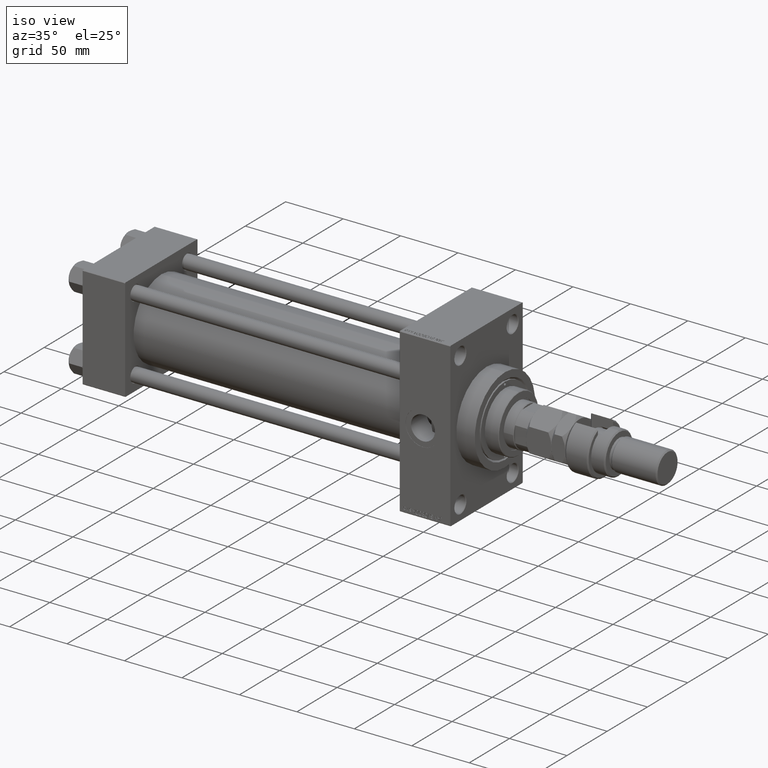
[diagram: clean part render]
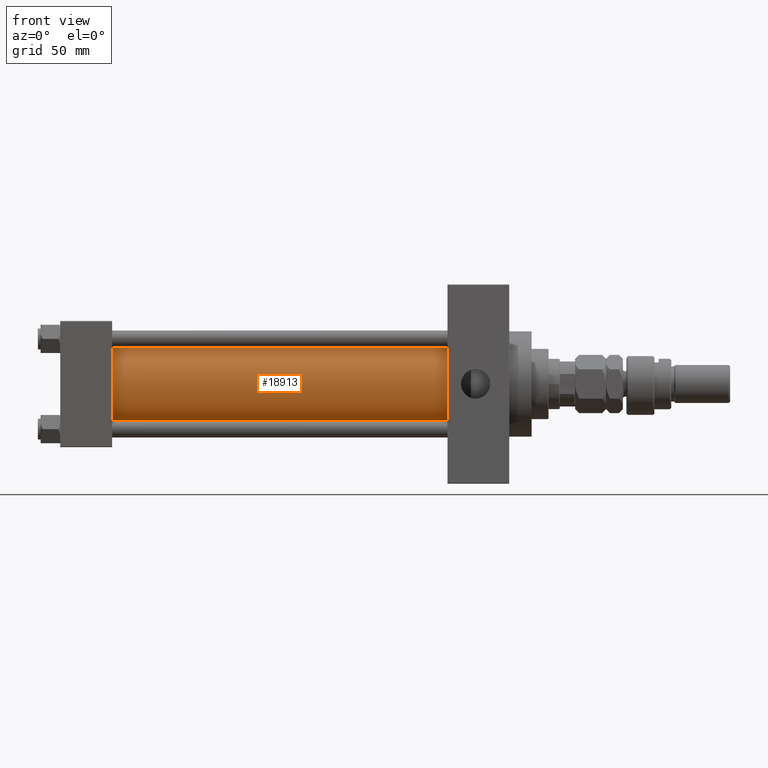
[diagram: tour spotlight — one face highlighted and labeled with its STEP entity id]
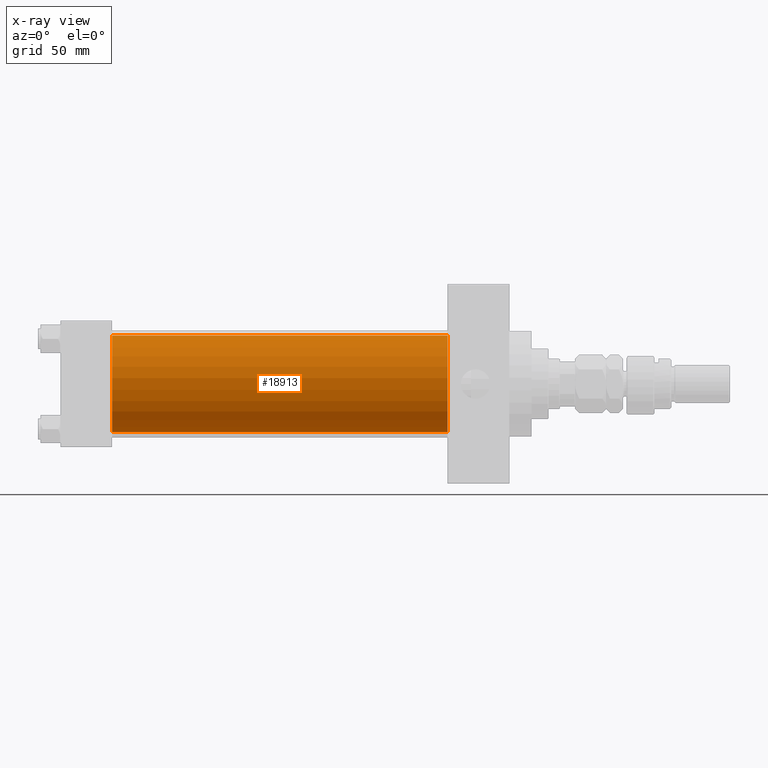
[diagram: x-ray of the same camera — body ghosted, this tour face saturated]
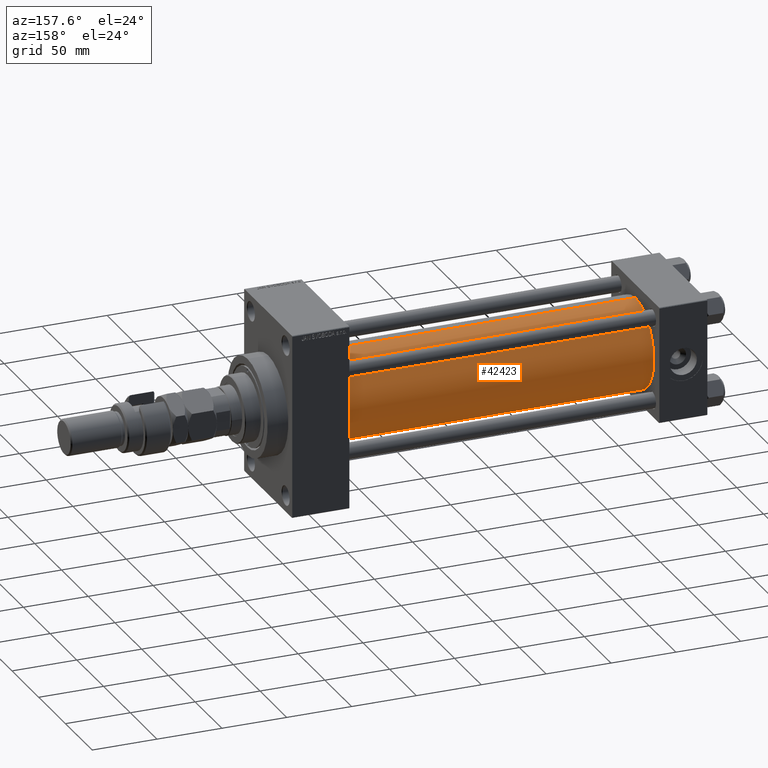
[diagram: tour spotlight — one face highlighted and labeled with its STEP entity id]
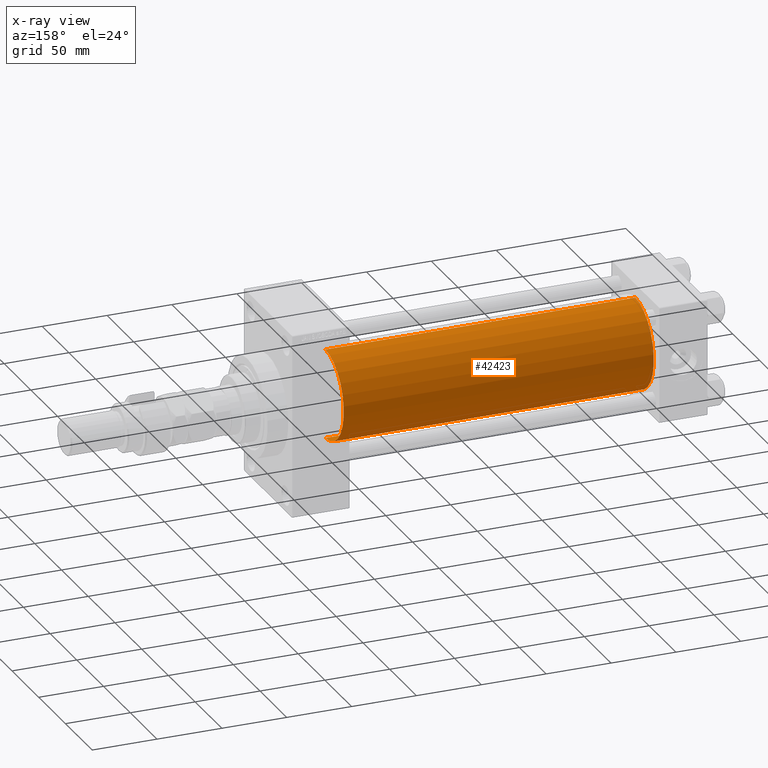
[diagram: x-ray of the same camera — body ghosted, this tour face saturated]
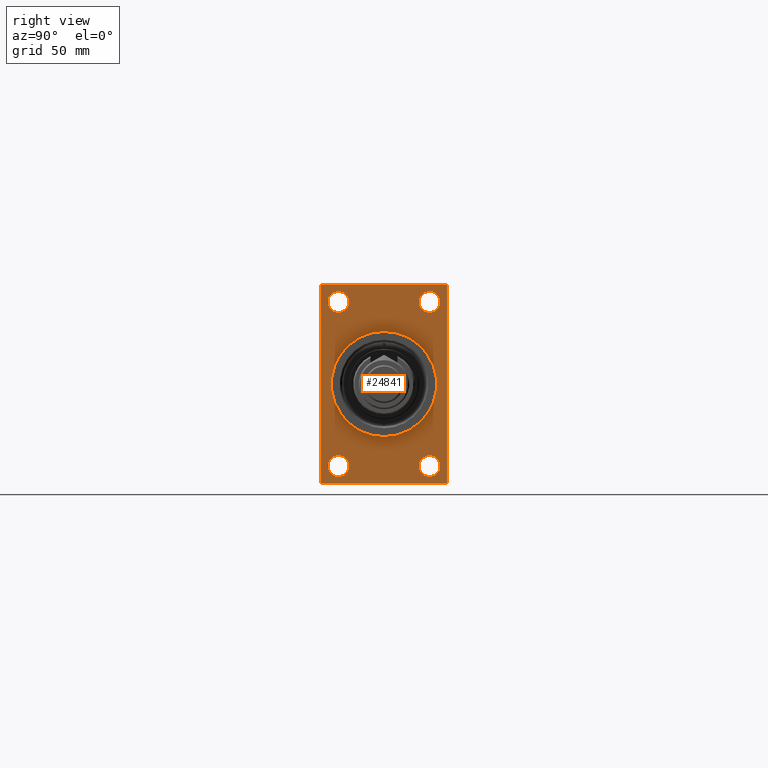
[diagram: tour spotlight — one face highlighted and labeled with its STEP entity id]
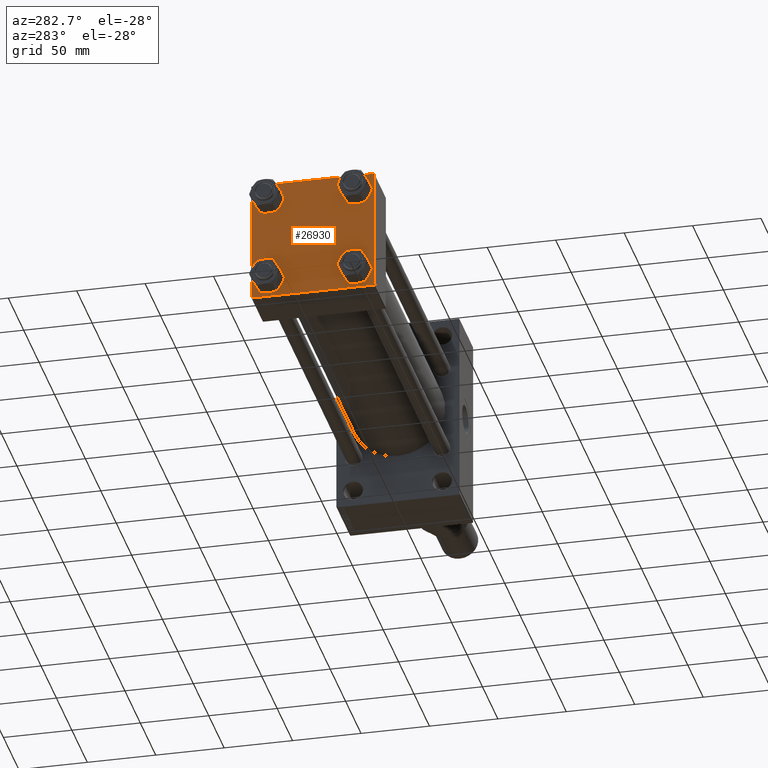
[diagram: tour spotlight — one face highlighted and labeled with its STEP entity id]
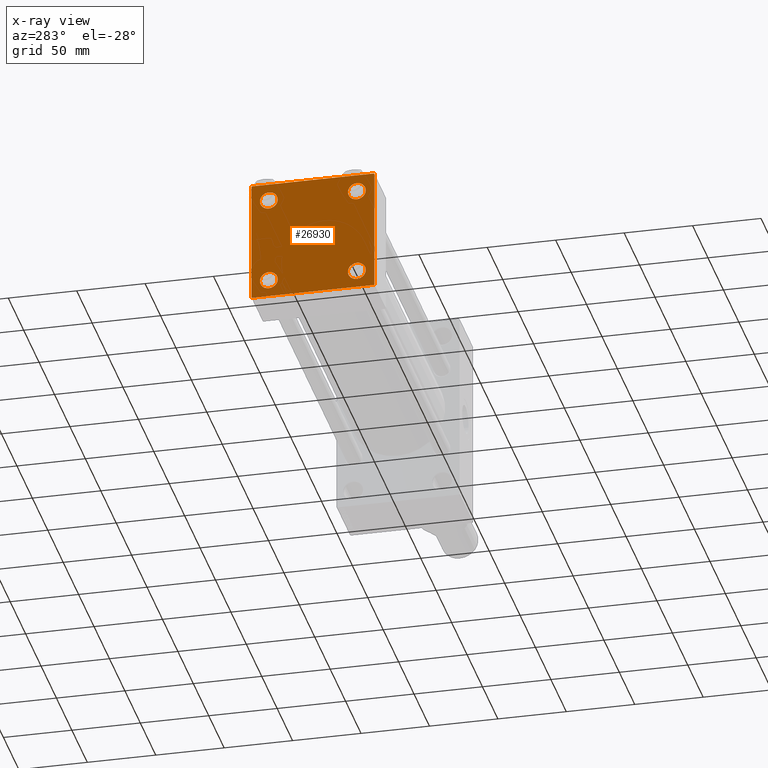
[diagram: x-ray of the same camera — body ghosted, this tour face saturated]
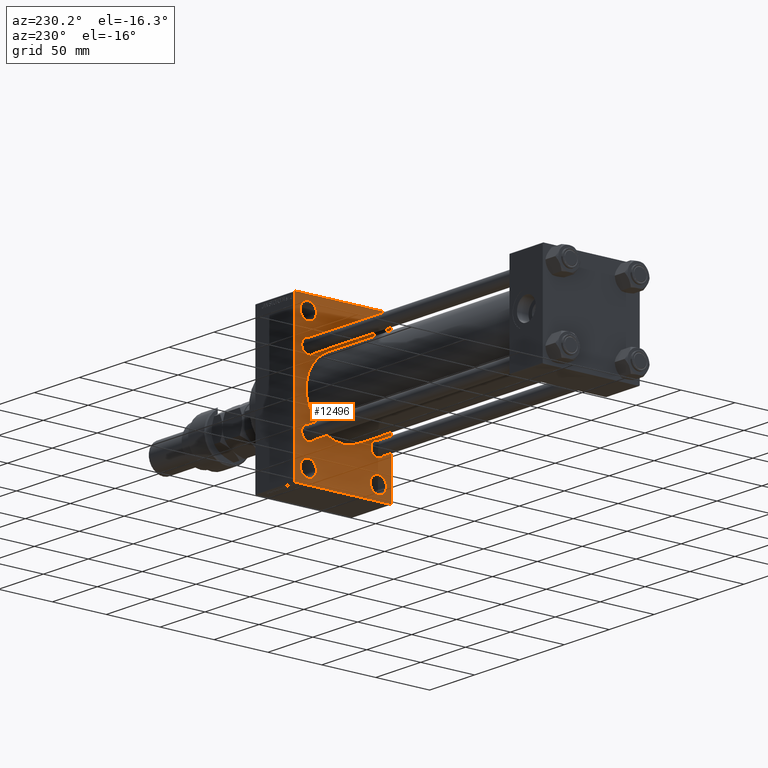
[diagram: tour spotlight — one face highlighted and labeled with its STEP entity id]
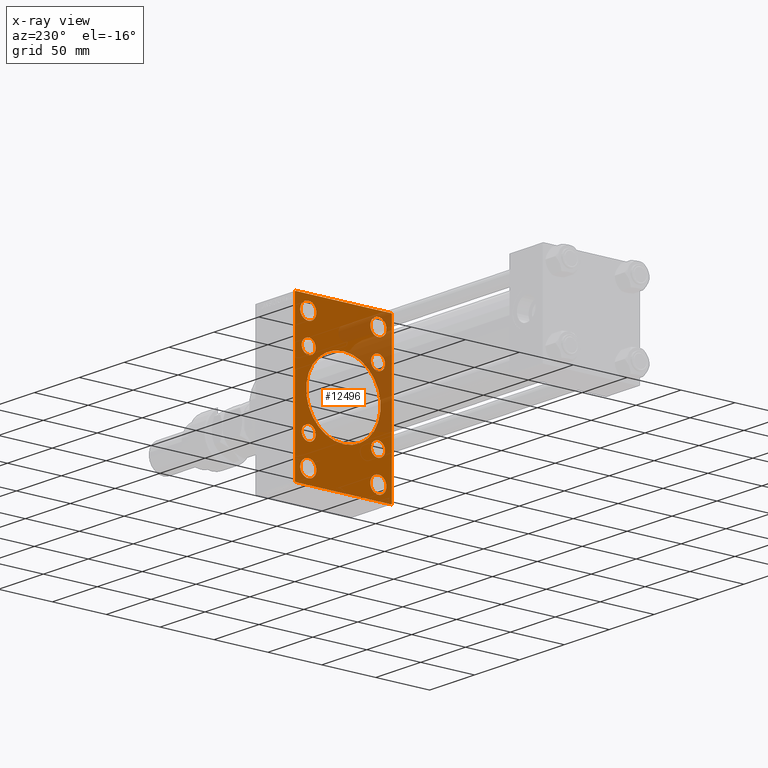
[diagram: x-ray of the same camera — body ghosted, this tour face saturated]
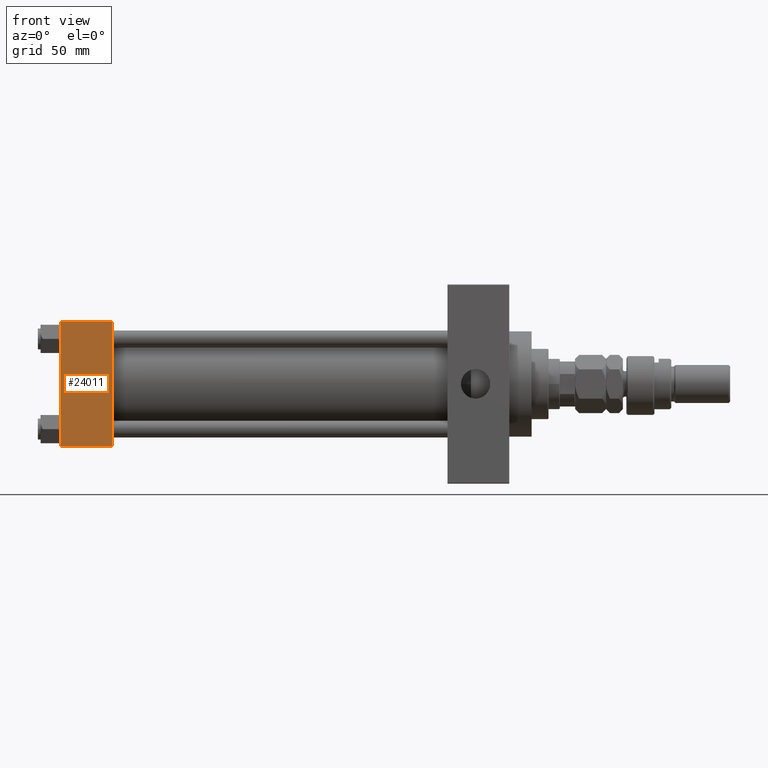
[diagram: tour spotlight — one face highlighted and labeled with its STEP entity id]
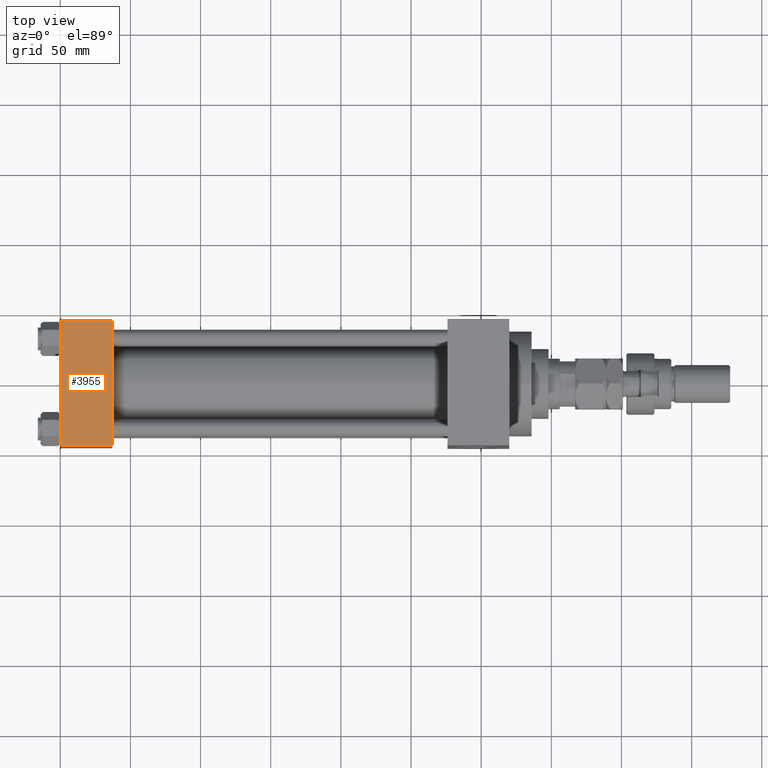
[diagram: tour spotlight — one face highlighted and labeled with its STEP entity id]
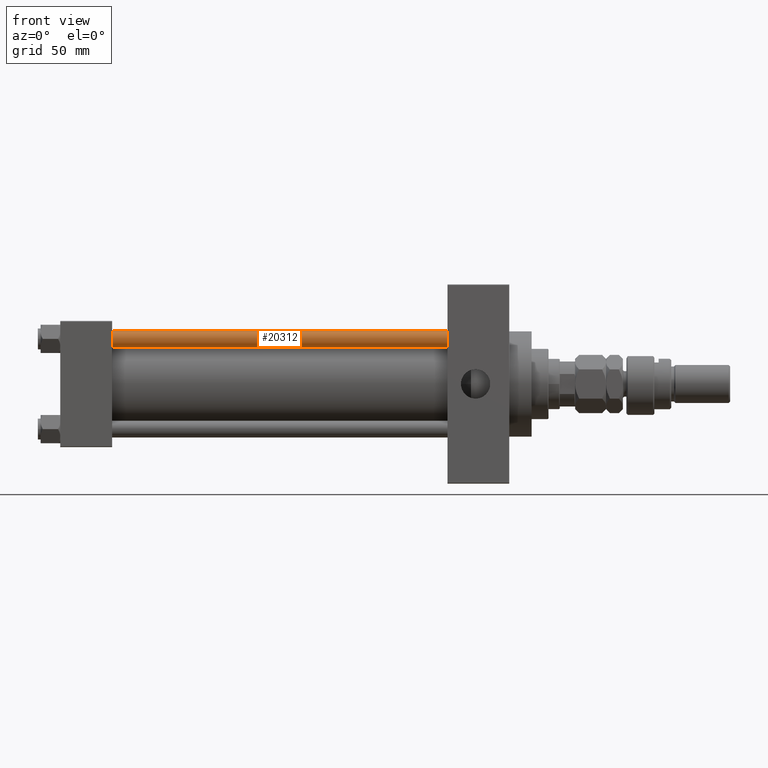
[diagram: tour spotlight — one face highlighted and labeled with its STEP entity id]
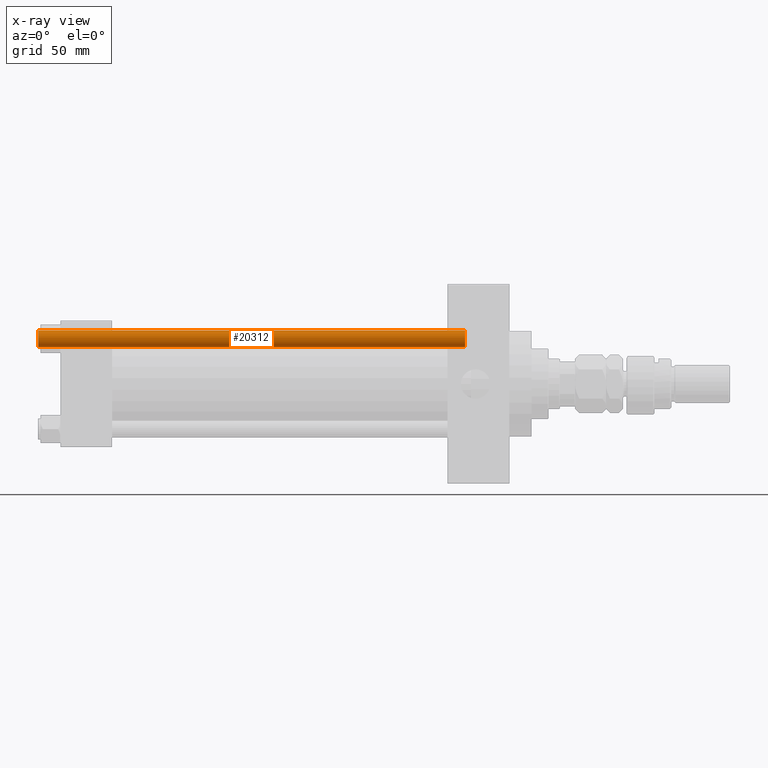
[diagram: x-ray of the same camera — body ghosted, this tour face saturated]
A machine part: a face-by-face anatomy tour. The part has 1197 B-rep faces; the first image is the clean iso view, then the 8 largest visible faces are spotlighted one at a time (largest first), each with its STEP entity span.

Face 1 — front view, entity #18913. An x-ray twin of the same camera follows (body ghosted, this face saturated) — the face is partly hidden behind the body. In plain terms, the highlighted cylindrical surface (partial cylindrical patch) has radius 34.5 mm, axis along (-1, -0, -0).
Definition (entity closure, byte-faithful):
#876 = AXIS2_PLACEMENT_3D ( 'NONE', #17547, #1804, #41478 ) ;
#1722 = CARTESIAN_POINT ( 'NONE',  ( 275.9999999999999432, 1.622946243093157097E-15, -34.50000000000000000 ) ) ;
#1723 = EDGE_CURVE ( 'NONE', #19366, #2540, #45271, .T. ) ;
#1804 = DIRECTION ( 'NONE',  ( 1.000000000000000000, -0.000000000000000000, 0.000000000000000000 ) ) ;
#2540 = VERTEX_POINT ( 'NONE', #8666 ) ;
#4598 = VERTEX_POINT ( 'NONE', #1722 ) ;
#7290 = CYLINDRICAL_SURFACE ( 'NONE', #12649, 34.50000000000000000 ) ;
#8666 = CARTESIAN_POINT ( 'NONE',  ( 37.00000000000000711, -2.602085213965210642E-15, 34.50000000000000000 ) ) ;
#9701 = CARTESIAN_POINT ( 'NONE',  ( 37.00000000000000711, 1.622946243093157097E-15, -34.50000000000000000 ) ) ;
#10205 = VERTEX_POINT ( 'NONE', #9701 ) ;
#11446 = DIRECTION ( 'NONE',  ( 0.000000000000000000, 0.000000000000000000, -1.000000000000000000 ) ) ;
#12649 = AXIS2_PLACEMENT_3D ( 'NONE', #37820, #26130, #42149 ) ;
#15250 = CARTESIAN_POINT ( 'NONE',  ( 275.9999999999999432, -2.602085213965210642E-15, 0.000000000000000000 ) ) ;
#15389 = EDGE_CURVE ( 'NONE', #4598, #10205, #18889, .T. ) ;
#16552 = ORIENTED_EDGE ( 'NONE', *, *, #1723, .T. ) ;
#17105 = AXIS2_PLACEMENT_3D ( 'NONE', #15250, #30778, #11446 ) ;
#17547 = CARTESIAN_POINT ( 'NONE',  ( 37.00000000000000711, -2.602085213965210642E-15, 0.000000000000000000 ) ) ;
#18283 = DIRECTION ( 'NONE',  ( -1.000000000000000000, -0.000000000000000000, -0.000000000000000000 ) ) ;
#18889 = LINE ( 'NONE', #45625, #46721 ) ;
#18913 = ADVANCED_FACE ( 'NONE', ( #33507 ), #7290, .T. ) ;
#19366 = VERTEX_POINT ( 'NONE', #23258 ) ;
#23258 = CARTESIAN_POINT ( 'NONE',  ( 275.9999999999999432, -2.602085213965210642E-15, 34.50000000000000000 ) ) ;
#26130 = DIRECTION ( 'NONE',  ( -1.000000000000000000, -0.000000000000000000, -0.000000000000000000 ) ) ;
#26871 = CIRCLE ( 'NONE', #17105, 34.50000000000000000 ) ;
#30778 = DIRECTION ( 'NONE',  ( 1.000000000000000000, 0.000000000000000000, 0.000000000000000000 ) ) ;
#33507 = FACE_OUTER_BOUND ( 'NONE', #42102, .T. ) ;
#33827 = CARTESIAN_POINT ( 'NONE',  ( 275.9999999999999432, -2.602085213965210642E-15, 34.50000000000000000 ) ) ;
#34394 = ORIENTED_EDGE ( 'NONE', *, *, #35603, .F. ) ;
#35317 = EDGE_CURVE ( 'NONE', #2540, #10205, #47163, .T. ) ;
#35603 = EDGE_CURVE ( 'NONE', #19366, #4598, #26871, .T. ) ;
#37820 = CARTESIAN_POINT ( 'NONE',  ( 275.9999999999999432, -2.602085213965210642E-15, 0.000000000000000000 ) ) ;
#41315 = ORIENTED_EDGE ( 'NONE', *, *, #35317, .T. ) ;
#41478 = DIRECTION ( 'NONE',  ( 0.000000000000000000, 0.000000000000000000, 1.000000000000000000 ) ) ;
#41810 = DIRECTION ( 'NONE',  ( -1.000000000000000000, -0.000000000000000000, -0.000000000000000000 ) ) ;
#42102 = EDGE_LOOP ( 'NONE', ( #44611, #34394, #16552, #41315 ) ) ;
#42149 = DIRECTION ( 'NONE',  ( 0.000000000000000000, 0.000000000000000000, 1.000000000000000000 ) ) ;
#44611 = ORIENTED_EDGE ( 'NONE', *, *, #15389, .F. ) ;
#45271 = LINE ( 'NONE', #33827, #46943 ) ;
#45625 = CARTESIAN_POINT ( 'NONE',  ( 275.9999999999999432, 1.622946243093157097E-15, -34.50000000000000000 ) ) ;
#46721 = VECTOR ( 'NONE', #41810, 1000.000000000000000 ) ;
#46943 = VECTOR ( 'NONE', #18283, 1000.000000000000000 ) ;
#47163 = CIRCLE ( 'NONE', #876, 34.50000000000000000 ) ;

Face 2 — auxiliary view, entity #42423. An x-ray twin of the same camera follows (body ghosted, this face saturated) — the face is partly hidden behind the body. In plain terms, the highlighted cylindrical surface (partial cylindrical patch) has radius 34.5 mm, axis along (-1, -0, -0).
Definition (entity closure, byte-faithful):
#501 = AXIS2_PLACEMENT_3D ( 'NONE', #23571, #46964, #20483 ) ;
#1722 = CARTESIAN_POINT ( 'NONE',  ( 275.9999999999999432, 1.622946243093157097E-15, -34.50000000000000000 ) ) ;
#1723 = EDGE_CURVE ( 'NONE', #19366, #2540, #45271, .T. ) ;
#2540 = VERTEX_POINT ( 'NONE', #8666 ) ;
#4598 = VERTEX_POINT ( 'NONE', #1722 ) ;
#7190 = CYLINDRICAL_SURFACE ( 'NONE', #35210, 34.50000000000000000 ) ;
#7727 = EDGE_LOOP ( 'NONE', ( #46376, #21909, #14112, #49746 ) ) ;
#8051 = DIRECTION ( 'NONE',  ( 0.000000000000000000, 0.000000000000000000, -1.000000000000000000 ) ) ;
#8666 = CARTESIAN_POINT ( 'NONE',  ( 37.00000000000000711, -2.602085213965210642E-15, 34.50000000000000000 ) ) ;
#9701 = CARTESIAN_POINT ( 'NONE',  ( 37.00000000000000711, 1.622946243093157097E-15, -34.50000000000000000 ) ) ;
#10205 = VERTEX_POINT ( 'NONE', #9701 ) ;
#13895 = EDGE_CURVE ( 'NONE', #4598, #19366, #40975, .T. ) ;
#14112 = ORIENTED_EDGE ( 'NONE', *, *, #19975, .T. ) ;
#15389 = EDGE_CURVE ( 'NONE', #4598, #10205, #18889, .T. ) ;
#15681 = CARTESIAN_POINT ( 'NONE',  ( 275.9999999999999432, -2.602085213965210642E-15, 0.000000000000000000 ) ) ;
#18283 = DIRECTION ( 'NONE',  ( -1.000000000000000000, -0.000000000000000000, -0.000000000000000000 ) ) ;
#18889 = LINE ( 'NONE', #45625, #46721 ) ;
#19366 = VERTEX_POINT ( 'NONE', #23258 ) ;
#19975 = EDGE_CURVE ( 'NONE', #10205, #2540, #33796, .T. ) ;
#20483 = DIRECTION ( 'NONE',  ( 0.000000000000000000, 0.000000000000000000, 1.000000000000000000 ) ) ;
#21909 = ORIENTED_EDGE ( 'NONE', *, *, #15389, .T. ) ;
#22197 = DIRECTION ( 'NONE',  ( 0.000000000000000000, 0.000000000000000000, 1.000000000000000000 ) ) ;
#23258 = CARTESIAN_POINT ( 'NONE',  ( 275.9999999999999432, -2.602085213965210642E-15, 34.50000000000000000 ) ) ;
#23571 = CARTESIAN_POINT ( 'NONE',  ( 37.00000000000000711, -2.602085213965210642E-15, 0.000000000000000000 ) ) ;
#27149 = DIRECTION ( 'NONE',  ( 1.000000000000000000, 0.000000000000000000, 0.000000000000000000 ) ) ;
#30422 = AXIS2_PLACEMENT_3D ( 'NONE', #15681, #27149, #8051 ) ;
#33796 = CIRCLE ( 'NONE', #501, 34.50000000000000000 ) ;
#33827 = CARTESIAN_POINT ( 'NONE',  ( 275.9999999999999432, -2.602085213965210642E-15, 34.50000000000000000 ) ) ;
#35210 = AXIS2_PLACEMENT_3D ( 'NONE', #38233, #49935, #22197 ) ;
#38233 = CARTESIAN_POINT ( 'NONE',  ( 275.9999999999999432, -2.602085213965210642E-15, 0.000000000000000000 ) ) ;
#40975 = CIRCLE ( 'NONE', #30422, 34.50000000000000000 ) ;
#41810 = DIRECTION ( 'NONE',  ( -1.000000000000000000, -0.000000000000000000, -0.000000000000000000 ) ) ;
#42423 = ADVANCED_FACE ( 'NONE', ( #46615 ), #7190, .T. ) ;
#45271 = LINE ( 'NONE', #33827, #46943 ) ;
#45625 = CARTESIAN_POINT ( 'NONE',  ( 275.9999999999999432, 1.622946243093157097E-15, -34.50000000000000000 ) ) ;
#46376 = ORIENTED_EDGE ( 'NONE', *, *, #13895, .F. ) ;
#46615 = FACE_OUTER_BOUND ( 'NONE', #7727, .T. ) ;
#46721 = VECTOR ( 'NONE', #41810, 1000.000000000000000 ) ;
#46943 = VECTOR ( 'NONE', #18283, 1000.000000000000000 ) ;
#46964 = DIRECTION ( 'NONE',  ( 1.000000000000000000, -0.000000000000000000, 0.000000000000000000 ) ) ;
#49746 = ORIENTED_EDGE ( 'NONE', *, *, #1723, .F. ) ;
#49935 = DIRECTION ( 'NONE',  ( -1.000000000000000000, -0.000000000000000000, -0.000000000000000000 ) ) ;

Face 3 — right view, entity #24841. In plain terms, the highlighted planar face has unit normal (-1, 0, 0).
Definition (entity closure, byte-faithful):
#84 = LINE ( 'NONE', #22972, #3218 ) ;
#331 = EDGE_CURVE ( 'NONE', #21145, #23804, #16925, .T. ) ;
#346 = CARTESIAN_POINT ( 'NONE',  ( 319.9999999999999432, -44.49999999999988631, -71.00000000000000000 ) ) ;
#1559 = FACE_OUTER_BOUND ( 'NONE', #35866, .T. ) ;
#2117 = CARTESIAN_POINT ( 'NONE',  ( 319.9999999999999432, 0.000000000000000000, 0.000000000000000000 ) ) ;
#2641 = CARTESIAN_POINT ( 'NONE',  ( 319.9999999999999432, 32.50000000000000711, 58.50000000000000711 ) ) ;
#3218 = VECTOR ( 'NONE', #3893, 1000.000000000000114 ) ;
#3254 = LINE ( 'NONE', #18756, #47041 ) ;
#3332 = VERTEX_POINT ( 'NONE', #37173 ) ;
#3680 = ORIENTED_EDGE ( 'NONE', *, *, #10739, .T. ) ;
#3893 = DIRECTION ( 'NONE',  ( 0.000000000000000000, 0.7071067811865965336, -0.7071067811864985009 ) ) ;
#3998 = DIRECTION ( 'NONE',  ( -1.000000000000000000, 0.000000000000000000, -0.000000000000000000 ) ) ;
#4256 = DIRECTION ( 'NONE',  ( -0.000000000000000000, -0.7071067811865426878, -0.7071067811865524577 ) ) ;
#4606 = DIRECTION ( 'NONE',  ( 0.000000000000000000, 0.000000000000000000, -1.000000000000000000 ) ) ;
#4635 = CARTESIAN_POINT ( 'NONE',  ( 319.9999999999999432, 0.000000000000000000, 37.50000000000000711 ) ) ;
#4724 = CARTESIAN_POINT ( 'NONE',  ( 319.9999999999999432, -32.50000000000000000, 58.50000000000000711 ) ) ;
#4784 = CARTESIAN_POINT ( 'NONE',  ( 319.9999999999999432, -44.99999999999997158, -70.50000000000000000 ) ) ;
#4851 = CARTESIAN_POINT ( 'NONE',  ( 319.9999999999999432, -44.99999999999997158, 70.99999999999998579 ) ) ;
#5154 = ORIENTED_EDGE ( 'NONE', *, *, #13140, .T. ) ;
#5558 = DIRECTION ( 'NONE',  ( 0.000000000000000000, 0.000000000000000000, 1.000000000000000000 ) ) ;
#5716 = VECTOR ( 'NONE', #18624, 999.9999999999998863 ) ;
#6030 = CARTESIAN_POINT ( 'NONE',  ( 319.9999999999999432, 45.00000000000001421, -70.49999999999997158 ) ) ;
#6174 = DIRECTION ( 'NONE',  ( 0.000000000000000000, -1.000000000000000000, -1.541976423090495387E-16 ) ) ;
#6324 = VERTEX_POINT ( 'NONE', #4635 ) ;
#6730 = CIRCLE ( 'NONE', #27881, 37.50000000000000711 ) ;
#6842 = VECTOR ( 'NONE', #6174, 1000.000000000000000 ) ;
#6951 = CARTESIAN_POINT ( 'NONE',  ( 319.9999999999999432, 44.50000000000001421, -70.99999999999998579 ) ) ;
#7432 = ORIENTED_EDGE ( 'NONE', *, *, #17886, .T. ) ;
#8137 = CARTESIAN_POINT ( 'NONE',  ( 319.9999999999999432, -32.50000000000000000, 58.50000000000000711 ) ) ;
#8615 = DIRECTION ( 'NONE',  ( 1.000000000000000000, 0.000000000000000000, 0.000000000000000000 ) ) ;
#8702 = EDGE_LOOP ( 'NONE', ( #12513, #7432 ) ) ;
#9618 = VECTOR ( 'NONE', #37032, 1000.000000000000000 ) ;
#10000 = CIRCLE ( 'NONE', #20524, 7.500000000000047962 ) ;
#10566 = VERTEX_POINT ( 'NONE', #43999 ) ;
#10739 = EDGE_CURVE ( 'NONE', #29686, #35643, #10000, .T. ) ;
#11344 = EDGE_CURVE ( 'NONE', #35518, #18760, #40196, .T. ) ;
#11488 = VERTEX_POINT ( 'NONE', #15486 ) ;
#12513 = ORIENTED_EDGE ( 'NONE', *, *, #43592, .T. ) ;
#12613 = AXIS2_PLACEMENT_3D ( 'NONE', #28712, #48287, #5558 ) ;
#12726 = AXIS2_PLACEMENT_3D ( 'NONE', #34785, #3998, #15678 ) ;
#13026 = VERTEX_POINT ( 'NONE', #46296 ) ;
#13140 = EDGE_CURVE ( 'NONE', #13026, #3332, #30772, .T. ) ;
#13235 = FACE_BOUND ( 'NONE', #42277, .T. ) ;
#13506 = DIRECTION ( 'NONE',  ( 0.000000000000000000, 0.000000000000000000, 1.000000000000000000 ) ) ;
#13579 = EDGE_CURVE ( 'NONE', #3332, #45318, #29579, .T. ) ;
#14644 = CIRCLE ( 'NONE', #21130, 7.500000000000047962 ) ;
#14798 = DIRECTION ( 'NONE',  ( -1.000000000000000000, 0.000000000000000000, -0.000000000000000000 ) ) ;
#15036 = EDGE_CURVE ( 'NONE', #15151, #10566, #35353, .T. ) ;
#15151 = VERTEX_POINT ( 'NONE', #17497 ) ;
#15229 = EDGE_LOOP ( 'NONE', ( #38635, #45553 ) ) ;
#15486 = CARTESIAN_POINT ( 'NONE',  ( 319.9999999999999432, 4.592425496802575156E-15, -37.50000000000000711 ) ) ;
#15522 = ORIENTED_EDGE ( 'NONE', *, *, #35067, .T. ) ;
#15678 = DIRECTION ( 'NONE',  ( 0.000000000000000000, 0.000000000000000000, 1.000000000000000000 ) ) ;
#16852 = ORIENTED_EDGE ( 'NONE', *, *, #13579, .T. ) ;
#16925 = CIRCLE ( 'NONE', #29140, 7.500000000000047962 ) ;
#17480 = EDGE_CURVE ( 'NONE', #6324, #11488, #32999, .T. ) ;
#17497 = CARTESIAN_POINT ( 'NONE',  ( 319.9999999999999432, -32.50000000000000000, -66.00000000000004263 ) ) ;
#17853 = DIRECTION ( 'NONE',  ( 0.000000000000000000, 0.000000000000000000, 1.000000000000000000 ) ) ;
#17886 = EDGE_CURVE ( 'NONE', #26763, #25940, #28955, .T. ) ;
#18050 = FACE_BOUND ( 'NONE', #15229, .T. ) ;
#18077 = ORIENTED_EDGE ( 'NONE', *, *, #41447, .F. ) ;
#18113 = CARTESIAN_POINT ( 'NONE',  ( 319.9999999999999432, 45.00000000000002132, 71.00000000000000000 ) ) ;
#18170 = ORIENTED_EDGE ( 'NONE', *, *, #28009, .T. ) ;
#18624 = DIRECTION ( 'NONE',  ( -0.000000000000000000, 0.7071067811865376918, 0.7071067811865574537 ) ) ;
#18756 = CARTESIAN_POINT ( 'NONE',  ( 319.9999999999999432, -44.99999999999997158, 70.49999999999998579 ) ) ;
#18760 = VERTEX_POINT ( 'NONE', #4784 ) ;
#19360 = ORIENTED_EDGE ( 'NONE', *, *, #29774, .T. ) ;
#20524 = AXIS2_PLACEMENT_3D ( 'NONE', #4724, #31188, #23806 ) ;
#20528 = EDGE_CURVE ( 'NONE', #10566, #15151, #45997, .T. ) ;
#20615 = FACE_BOUND ( 'NONE', #32921, .T. ) ;
#20667 = CIRCLE ( 'NONE', #22269, 7.500000000000062172 ) ;
#21130 = AXIS2_PLACEMENT_3D ( 'NONE', #8137, #42495, #31297 ) ;
#21145 = VERTEX_POINT ( 'NONE', #42846 ) ;
#21562 = CARTESIAN_POINT ( 'NONE',  ( 319.9999999999999432, 32.50000000000000711, -66.00000000000005684 ) ) ;
#21739 = ORIENTED_EDGE ( 'NONE', *, *, #20528, .T. ) ;
#21939 = DIRECTION ( 'NONE',  ( 1.000000000000000000, 0.000000000000000000, 0.000000000000000000 ) ) ;
#22269 = AXIS2_PLACEMENT_3D ( 'NONE', #25732, #32859, #13506 ) ;
#22423 = ORIENTED_EDGE ( 'NONE', *, *, #11344, .T. ) ;
#22646 = CARTESIAN_POINT ( 'NONE',  ( 319.9999999999999432, -44.99999999999997158, 70.49999999999998579 ) ) ;
#22972 = CARTESIAN_POINT ( 'NONE',  ( 319.9999999999999432, -44.49999999999991473, -71.00000000000000000 ) ) ;
#23695 = CARTESIAN_POINT ( 'NONE',  ( 319.9999999999999432, 32.50000000000000711, 58.50000000000000711 ) ) ;
#23746 = CIRCLE ( 'NONE', #26980, 7.500000000000047962 ) ;
#23804 = VERTEX_POINT ( 'NONE', #34428 ) ;
#23806 = DIRECTION ( 'NONE',  ( 0.000000000000000000, 0.000000000000000000, 1.000000000000000000 ) ) ;
#23914 = ORIENTED_EDGE ( 'NONE', *, *, #27504, .T. ) ;
#23966 = DIRECTION ( 'NONE',  ( 0.000000000000000000, -4.886545002751570165E-17, -1.000000000000000000 ) ) ;
#24072 = AXIS2_PLACEMENT_3D ( 'NONE', #44835, #41783, #17853 ) ;
#24841 = ADVANCED_FACE ( 'NONE', ( #20615, #13235, #37398, #18050, #44030, #1559 ), #45028, .F. ) ;
#25338 = CARTESIAN_POINT ( 'NONE',  ( 319.9999999999999432, -44.49999999999995026, 70.99999999999998579 ) ) ;
#25732 = CARTESIAN_POINT ( 'NONE',  ( 319.9999999999999432, 32.50000000000000711, -58.50000000000000000 ) ) ;
#25937 = ORIENTED_EDGE ( 'NONE', *, *, #15036, .T. ) ;
#25940 = VERTEX_POINT ( 'NONE', #21562 ) ;
#26314 = EDGE_CURVE ( 'NONE', #37369, #47519, #36779, .T. ) ;
#26526 = DIRECTION ( 'NONE',  ( 0.000000000000000000, 0.000000000000000000, -1.000000000000000000 ) ) ;
#26763 = VERTEX_POINT ( 'NONE', #27042 ) ;
#26980 = AXIS2_PLACEMENT_3D ( 'NONE', #23695, #14798, #30825 ) ;
#27024 = LINE ( 'NONE', #42788, #5716 ) ;
#27042 = CARTESIAN_POINT ( 'NONE',  ( 319.9999999999999432, 32.50000000000000711, -50.99999999999993605 ) ) ;
#27464 = CARTESIAN_POINT ( 'NONE',  ( 319.9999999999999432, 0.000000000000000000, 0.000000000000000000 ) ) ;
#27504 = EDGE_CURVE ( 'NONE', #45318, #35518, #3254, .T. ) ;
#27538 = LINE ( 'NONE', #43793, #48196 ) ;
#27713 = DIRECTION ( 'NONE',  ( 0.000000000000000000, 0.000000000000000000, -1.000000000000000000 ) ) ;
#27881 = AXIS2_PLACEMENT_3D ( 'NONE', #2117, #21939, #26526 ) ;
#28009 = EDGE_CURVE ( 'NONE', #18760, #47519, #84, .T. ) ;
#28117 = ORIENTED_EDGE ( 'NONE', *, *, #26314, .F. ) ;
#28359 = CARTESIAN_POINT ( 'NONE',  ( 319.9999999999999432, -32.50000000000000000, 50.99999999999996447 ) ) ;
#28712 = CARTESIAN_POINT ( 'NONE',  ( 319.9999999999999432, -32.50000000000000000, -58.49999999999999289 ) ) ;
#28955 = CIRCLE ( 'NONE', #12726, 7.500000000000062172 ) ;
#29140 = AXIS2_PLACEMENT_3D ( 'NONE', #2641, #34191, #30615 ) ;
#29409 = CARTESIAN_POINT ( 'NONE',  ( 319.9999999999999432, 45.00000000000001421, -70.99999999999998579 ) ) ;
#29512 = DIRECTION ( 'NONE',  ( -0.000000000000000000, 0.000000000000000000, 1.000000000000000000 ) ) ;
#29579 = LINE ( 'NONE', #18113, #6842 ) ;
#29686 = VERTEX_POINT ( 'NONE', #28359 ) ;
#29774 = EDGE_CURVE ( 'NONE', #35643, #29686, #14644, .T. ) ;
#30615 = DIRECTION ( 'NONE',  ( 0.000000000000000000, 0.000000000000000000, 1.000000000000000000 ) ) ;
#30772 = LINE ( 'NONE', #31022, #33615 ) ;
#30825 = DIRECTION ( 'NONE',  ( 0.000000000000000000, 0.000000000000000000, 1.000000000000000000 ) ) ;
#31022 = CARTESIAN_POINT ( 'NONE',  ( 319.9999999999999432, 44.49999999999996447, 71.00000000000000000 ) ) ;
#31188 = DIRECTION ( 'NONE',  ( -1.000000000000000000, 0.000000000000000000, -0.000000000000000000 ) ) ;
#31277 = CARTESIAN_POINT ( 'NONE',  ( 319.9999999999999432, -32.50000000000000000, 66.00000000000005684 ) ) ;
#31297 = DIRECTION ( 'NONE',  ( 0.000000000000000000, 0.000000000000000000, 1.000000000000000000 ) ) ;
#32411 = EDGE_LOOP ( 'NONE', ( #43746, #18077 ) ) ;
#32773 = VECTOR ( 'NONE', #4606, 1000.000000000000000 ) ;
#32859 = DIRECTION ( 'NONE',  ( -1.000000000000000000, 0.000000000000000000, -0.000000000000000000 ) ) ;
#32921 = EDGE_LOOP ( 'NONE', ( #3680, #19360 ) ) ;
#32999 = CIRCLE ( 'NONE', #42768, 37.50000000000000711 ) ;
#33615 = VECTOR ( 'NONE', #42973, 1000.000000000000000 ) ;
#33781 = EDGE_CURVE ( 'NONE', #23804, #21145, #23746, .T. ) ;
#34191 = DIRECTION ( 'NONE',  ( -1.000000000000000000, 0.000000000000000000, -0.000000000000000000 ) ) ;
#34428 = CARTESIAN_POINT ( 'NONE',  ( 319.9999999999999432, 32.50000000000000711, 66.00000000000005684 ) ) ;
#34785 = CARTESIAN_POINT ( 'NONE',  ( 319.9999999999999432, 32.50000000000000711, -58.50000000000000000 ) ) ;
#35067 = EDGE_CURVE ( 'NONE', #37369, #49084, #27024, .T. ) ;
#35353 = CIRCLE ( 'NONE', #12613, 7.500000000000055067 ) ;
#35518 = VERTEX_POINT ( 'NONE', #22646 ) ;
#35643 = VERTEX_POINT ( 'NONE', #31277 ) ;
#35866 = EDGE_LOOP ( 'NONE', ( #22423, #18170, #28117, #15522, #43565, #5154, #16852, #23914 ) ) ;
#36779 = LINE ( 'NONE', #29409, #9618 ) ;
#37032 = DIRECTION ( 'NONE',  ( 0.000000000000000000, -1.000000000000000000, -1.541976423090495633E-16 ) ) ;
#37173 = CARTESIAN_POINT ( 'NONE',  ( 319.9999999999999432, 44.49999999999996447, 71.00000000000000000 ) ) ;
#37369 = VERTEX_POINT ( 'NONE', #6951 ) ;
#37398 = FACE_BOUND ( 'NONE', #8702, .T. ) ;
#38635 = ORIENTED_EDGE ( 'NONE', *, *, #331, .T. ) ;
#40196 = LINE ( 'NONE', #4851, #32773 ) ;
#41447 = EDGE_CURVE ( 'NONE', #11488, #6324, #6730, .T. ) ;
#41783 = DIRECTION ( 'NONE',  ( -1.000000000000000000, 0.000000000000000000, -0.000000000000000000 ) ) ;
#42111 = AXIS2_PLACEMENT_3D ( 'NONE', #48337, #44775, #29512 ) ;
#42277 = EDGE_LOOP ( 'NONE', ( #25937, #21739 ) ) ;
#42495 = DIRECTION ( 'NONE',  ( -1.000000000000000000, 0.000000000000000000, -0.000000000000000000 ) ) ;
#42537 = EDGE_CURVE ( 'NONE', #13026, #49084, #27538, .T. ) ;
#42768 = AXIS2_PLACEMENT_3D ( 'NONE', #27464, #8615, #27713 ) ;
#42788 = CARTESIAN_POINT ( 'NONE',  ( 319.9999999999999432, 45.00000000000001421, -70.49999999999997158 ) ) ;
#42846 = CARTESIAN_POINT ( 'NONE',  ( 319.9999999999999432, 32.50000000000000711, 50.99999999999996447 ) ) ;
#42973 = DIRECTION ( 'NONE',  ( 0.000000000000000000, -0.7071067811865867636, 0.7071067811865081598 ) ) ;
#43565 = ORIENTED_EDGE ( 'NONE', *, *, #42537, .F. ) ;
#43592 = EDGE_CURVE ( 'NONE', #25940, #26763, #20667, .T. ) ;
#43746 = ORIENTED_EDGE ( 'NONE', *, *, #17480, .F. ) ;
#43793 = CARTESIAN_POINT ( 'NONE',  ( 319.9999999999999432, 45.00000000000002132, 71.00000000000000000 ) ) ;
#43999 = CARTESIAN_POINT ( 'NONE',  ( 319.9999999999999432, -32.50000000000000000, -50.99999999999992895 ) ) ;
#44030 = FACE_BOUND ( 'NONE', #32411, .T. ) ;
#44775 = DIRECTION ( 'NONE',  ( -1.000000000000000000, 0.000000000000000000, -0.000000000000000000 ) ) ;
#44835 = CARTESIAN_POINT ( 'NONE',  ( 319.9999999999999432, -32.50000000000000000, -58.49999999999999289 ) ) ;
#45028 = PLANE ( 'NONE',  #42111 ) ;
#45318 = VERTEX_POINT ( 'NONE', #25338 ) ;
#45553 = ORIENTED_EDGE ( 'NONE', *, *, #33781, .T. ) ;
#45997 = CIRCLE ( 'NONE', #24072, 7.500000000000055067 ) ;
#46296 = CARTESIAN_POINT ( 'NONE',  ( 319.9999999999999432, 45.00000000000002132, 70.50000000000000000 ) ) ;
#47041 = VECTOR ( 'NONE', #4256, 1000.000000000000000 ) ;
#47519 = VERTEX_POINT ( 'NONE', #346 ) ;
#48196 = VECTOR ( 'NONE', #23966, 1000.000000000000000 ) ;
#48287 = DIRECTION ( 'NONE',  ( -1.000000000000000000, 0.000000000000000000, -0.000000000000000000 ) ) ;
#48337 = CARTESIAN_POINT ( 'NONE',  ( 319.9999999999999432, 0.000000000000000000, 0.000000000000000000 ) ) ;
#49084 = VERTEX_POINT ( 'NONE', #6030 ) ;

Face 4 — auxiliary view, entity #26930. An x-ray twin of the same camera follows (body ghosted, this face saturated) — the face is partly hidden behind the body. In plain terms, the highlighted planar face has unit normal (-1, 0, 0).
Definition (entity closure, byte-faithful):
#227 = EDGE_CURVE ( 'NONE', #36561, #37432, #7976, .T. ) ;
#390 = VECTOR ( 'NONE', #7440, 1000.000000000000000 ) ;
#580 = DIRECTION ( 'NONE',  ( 0.000000000000000000, 0.000000000000000000, 1.000000000000000000 ) ) ;
#928 = VERTEX_POINT ( 'NONE', #27685 ) ;
#1059 = CARTESIAN_POINT ( 'NONE',  ( 0.000000000000000000, 44.49999999999998579, -44.99999999999998579 ) ) ;
#1746 = ORIENTED_EDGE ( 'NONE', *, *, #227, .T. ) ;
#2071 = FACE_BOUND ( 'NONE', #42253, .T. ) ;
#2074 = VERTEX_POINT ( 'NONE', #37824 ) ;
#2589 = DIRECTION ( 'NONE',  ( 0.000000000000000000, 0.000000000000000000, 1.000000000000000000 ) ) ;
#2973 = CARTESIAN_POINT ( 'NONE',  ( -0.000000000000000000, -44.75000000000029843, 44.74999999999967315 ) ) ;
#4100 = ORIENTED_EDGE ( 'NONE', *, *, #4106, .T. ) ;
#4106 = EDGE_CURVE ( 'NONE', #37432, #36561, #34028, .T. ) ;
#4371 = CARTESIAN_POINT ( 'NONE',  ( 0.000000000000000000, -44.49999999999995737, 45.00000000000000000 ) ) ;
#4484 = AXIS2_PLACEMENT_3D ( 'NONE', #22277, #18460, #33482 ) ;
#4814 = ORIENTED_EDGE ( 'NONE', *, *, #35870, .T. ) ;
#4927 = ORIENTED_EDGE ( 'NONE', *, *, #43531, .T. ) ;
#5344 = VECTOR ( 'NONE', #34429, 1000.000000000000000 ) ;
#6849 = ORIENTED_EDGE ( 'NONE', *, *, #45161, .T. ) ;
#6881 = LINE ( 'NONE', #22405, #13190 ) ;
#7234 = DIRECTION ( 'NONE',  ( 0.000000000000000000, 7.709882115452476934E-17, -1.000000000000000000 ) ) ;
#7312 = CARTESIAN_POINT ( 'NONE',  ( 0.000000000000000000, 32.14999999999999147, 32.15000000000000568 ) ) ;
#7440 = DIRECTION ( 'NONE',  ( 0.000000000000000000, 0.000000000000000000, -1.000000000000000000 ) ) ;
#7561 = DIRECTION ( 'NONE',  ( 0.000000000000000000, 0.000000000000000000, 1.000000000000000000 ) ) ;
#7976 = CIRCLE ( 'NONE', #14468, 6.499999999999977796 ) ;
#8341 = VERTEX_POINT ( 'NONE', #18877 ) ;
#8407 = VECTOR ( 'NONE', #7234, 1000.000000000000000 ) ;
#8780 = EDGE_CURVE ( 'NONE', #46625, #26120, #24520, .T. ) ;
#8953 = CARTESIAN_POINT ( 'NONE',  ( 0.000000000000000000, 44.99999999999998579, -44.99999999999998579 ) ) ;
#8978 = CIRCLE ( 'NONE', #17899, 6.500000000000019540 ) ;
#9205 = VECTOR ( 'NONE', #31649, 1000.000000000000114 ) ;
#9607 = EDGE_CURVE ( 'NONE', #22120, #24823, #6881, .T. ) ;
#10105 = CARTESIAN_POINT ( 'NONE',  ( 0.000000000000000000, -45.00000000000000711, 45.00000000000000000 ) ) ;
#10306 = EDGE_CURVE ( 'NONE', #8341, #47325, #33540, .T. ) ;
#10709 = FACE_BOUND ( 'NONE', #44525, .T. ) ;
#10958 = DIRECTION ( 'NONE',  ( -0.000000000000000000, -0.7071067811865474617, -0.7071067811865474617 ) ) ;
#10970 = DIRECTION ( 'NONE',  ( 0.000000000000000000, 0.000000000000000000, 1.000000000000000000 ) ) ;
#10979 = DIRECTION ( 'NONE',  ( 1.000000000000000000, -0.000000000000000000, 0.000000000000000000 ) ) ;
#11152 = ORIENTED_EDGE ( 'NONE', *, *, #8780, .T. ) ;
#11404 = DIRECTION ( 'NONE',  ( 1.000000000000000000, -0.000000000000000000, 0.000000000000000000 ) ) ;
#11453 = DIRECTION ( 'NONE',  ( 1.000000000000000000, -0.000000000000000000, 0.000000000000000000 ) ) ;
#11523 = CARTESIAN_POINT ( 'NONE',  ( 0.000000000000000000, -32.14999999999997726, -38.64999999999999147 ) ) ;
#11723 = EDGE_CURVE ( 'NONE', #33210, #928, #37071, .T. ) ;
#11824 = EDGE_CURVE ( 'NONE', #30120, #928, #19177, .T. ) ;
#11850 = ORIENTED_EDGE ( 'NONE', *, *, #9607, .T. ) ;
#11986 = ORIENTED_EDGE ( 'NONE', *, *, #11723, .F. ) ;
#12027 = CARTESIAN_POINT ( 'NONE',  ( 0.000000000000000000, 44.99999999999998579, 45.00000000000001421 ) ) ;
#12540 = VECTOR ( 'NONE', #40233, 1000.000000000000000 ) ;
#12746 = VERTEX_POINT ( 'NONE', #29390 ) ;
#13190 = VECTOR ( 'NONE', #10958, 1000.000000000000114 ) ;
#13777 = CARTESIAN_POINT ( 'NONE',  ( 0.000000000000000000, 32.14999999999999147, -32.15000000000000568 ) ) ;
#13829 = DIRECTION ( 'NONE',  ( 1.000000000000000000, -0.000000000000000000, 0.000000000000000000 ) ) ;
#14468 = AXIS2_PLACEMENT_3D ( 'NONE', #17637, #13829, #36237 ) ;
#14765 = CARTESIAN_POINT ( 'NONE',  ( 0.000000000000000000, 0.000000000000000000, 0.000000000000000000 ) ) ;
#16315 = AXIS2_PLACEMENT_3D ( 'NONE', #7312, #42419, #7561 ) ;
#17138 = CARTESIAN_POINT ( 'NONE',  ( 0.000000000000000000, -32.14999999999997726, 25.64999999999999147 ) ) ;
#17564 = PLANE ( 'NONE',  #36504 ) ;
#17637 = CARTESIAN_POINT ( 'NONE',  ( 0.000000000000000000, 32.14999999999999147, -32.15000000000000568 ) ) ;
#17899 = AXIS2_PLACEMENT_3D ( 'NONE', #46258, #11404, #34556 ) ;
#18079 = CARTESIAN_POINT ( 'NONE',  ( 0.000000000000000000, -32.14999999999997726, 32.15000000000001279 ) ) ;
#18460 = DIRECTION ( 'NONE',  ( 1.000000000000000000, -0.000000000000000000, 0.000000000000000000 ) ) ;
#18877 = CARTESIAN_POINT ( 'NONE',  ( 0.000000000000000000, -32.14999999999997726, 38.65000000000003411 ) ) ;
#19088 = ORIENTED_EDGE ( 'NONE', *, *, #46631, .F. ) ;
#19177 = LINE ( 'NONE', #34715, #9205 ) ;
#20690 = EDGE_LOOP ( 'NONE', ( #29690, #11152 ) ) ;
#22120 = VERTEX_POINT ( 'NONE', #24398 ) ;
#22277 = CARTESIAN_POINT ( 'NONE',  ( 0.000000000000000000, 32.14999999999999147, 32.15000000000000568 ) ) ;
#22405 = CARTESIAN_POINT ( 'NONE',  ( 0.000000000000000000, 44.74999999999998579, -44.74999999999998579 ) ) ;
#22682 = ORIENTED_EDGE ( 'NONE', *, *, #11824, .T. ) ;
#22842 = LINE ( 'NONE', #38353, #35005 ) ;
#23114 = EDGE_CURVE ( 'NONE', #26120, #46625, #33095, .T. ) ;
#24173 = AXIS2_PLACEMENT_3D ( 'NONE', #47115, #39227, #580 ) ;
#24254 = AXIS2_PLACEMENT_3D ( 'NONE', #13777, #10979, #2589 ) ;
#24338 = LINE ( 'NONE', #39849, #390 ) ;
#24398 = CARTESIAN_POINT ( 'NONE',  ( 0.000000000000000000, 44.99999999999998579, -44.49999999999995737 ) ) ;
#24520 = CIRCLE ( 'NONE', #32619, 6.499999999999977796 ) ;
#24650 = ORIENTED_EDGE ( 'NONE', *, *, #46244, .T. ) ;
#24823 = VERTEX_POINT ( 'NONE', #1059 ) ;
#25976 = FACE_BOUND ( 'NONE', #20690, .T. ) ;
#26120 = VERTEX_POINT ( 'NONE', #50314 ) ;
#26226 = FACE_BOUND ( 'NONE', #48260, .T. ) ;
#26914 = VERTEX_POINT ( 'NONE', #37667 ) ;
#26930 = ADVANCED_FACE ( 'NONE', ( #10709, #25976, #26226, #2071, #49634 ), #17564, .T. ) ;
#26964 = ORIENTED_EDGE ( 'NONE', *, *, #10306, .T. ) ;
#26974 = DIRECTION ( 'NONE',  ( 0.000000000000000000, 0.000000000000000000, 1.000000000000000000 ) ) ;
#27045 = EDGE_LOOP ( 'NONE', ( #6849, #11850, #4927, #22682, #11986, #46940, #19088, #32823 ) ) ;
#27122 = LINE ( 'NONE', #2973, #46393 ) ;
#27685 = CARTESIAN_POINT ( 'NONE',  ( 0.000000000000000000, -45.00000000000000000, -44.49999999999995737 ) ) ;
#27889 = AXIS2_PLACEMENT_3D ( 'NONE', #18079, #29799, #10970 ) ;
#29390 = CARTESIAN_POINT ( 'NONE',  ( 0.000000000000000000, 44.49999999999998579, 45.00000000000001421 ) ) ;
#29690 = ORIENTED_EDGE ( 'NONE', *, *, #23114, .T. ) ;
#29799 = DIRECTION ( 'NONE',  ( 1.000000000000000000, -0.000000000000000000, 0.000000000000000000 ) ) ;
#30120 = VERTEX_POINT ( 'NONE', #48551 ) ;
#30245 = EDGE_CURVE ( 'NONE', #47325, #8341, #8978, .T. ) ;
#30289 = DIRECTION ( 'NONE',  ( -1.000000000000000000, 0.000000000000000000, -0.000000000000000000 ) ) ;
#30968 = DIRECTION ( 'NONE',  ( 0.000000000000000000, 0.7071067811865474617, -0.7071067811865474617 ) ) ;
#31521 = EDGE_CURVE ( 'NONE', #33210, #35261, #27122, .T. ) ;
#31649 = DIRECTION ( 'NONE',  ( 0.000000000000000000, -0.7071067811865474617, 0.7071067811865474617 ) ) ;
#32361 = LINE ( 'NONE', #8953, #12540 ) ;
#32619 = AXIS2_PLACEMENT_3D ( 'NONE', #46305, #11453, #26974 ) ;
#32823 = ORIENTED_EDGE ( 'NONE', *, *, #35884, .T. ) ;
#33095 = CIRCLE ( 'NONE', #24173, 6.499999999999977796 ) ;
#33210 = VERTEX_POINT ( 'NONE', #40075 ) ;
#33482 = DIRECTION ( 'NONE',  ( 0.000000000000000000, 0.000000000000000000, 1.000000000000000000 ) ) ;
#33540 = CIRCLE ( 'NONE', #27889, 6.500000000000019540 ) ;
#34028 = CIRCLE ( 'NONE', #24254, 6.499999999999977796 ) ;
#34429 = DIRECTION ( 'NONE',  ( 0.000000000000000000, -1.000000000000000000, -1.541976423090495387E-16 ) ) ;
#34556 = DIRECTION ( 'NONE',  ( 0.000000000000000000, 0.000000000000000000, 1.000000000000000000 ) ) ;
#34557 = ORIENTED_EDGE ( 'NONE', *, *, #30245, .T. ) ;
#34715 = CARTESIAN_POINT ( 'NONE',  ( 0.000000000000000000, -44.74999999999998579, -44.74999999999998579 ) ) ;
#35005 = VECTOR ( 'NONE', #30968, 1000.000000000000114 ) ;
#35178 = LINE ( 'NONE', #12027, #5344 ) ;
#35261 = VERTEX_POINT ( 'NONE', #4371 ) ;
#35605 = CARTESIAN_POINT ( 'NONE',  ( 0.000000000000000000, 32.14999999999999147, -38.64999999999998437 ) ) ;
#35870 = EDGE_CURVE ( 'NONE', #26914, #37875, #41494, .T. ) ;
#35884 = EDGE_CURVE ( 'NONE', #12746, #2074, #22842, .T. ) ;
#36237 = DIRECTION ( 'NONE',  ( 0.000000000000000000, 0.000000000000000000, 1.000000000000000000 ) ) ;
#36504 = AXIS2_PLACEMENT_3D ( 'NONE', #14765, #30289, #45812 ) ;
#36561 = VERTEX_POINT ( 'NONE', #35605 ) ;
#37071 = LINE ( 'NONE', #10105, #8407 ) ;
#37432 = VERTEX_POINT ( 'NONE', #45885 ) ;
#37667 = CARTESIAN_POINT ( 'NONE',  ( 0.000000000000000000, 32.14999999999999147, 38.64999999999999147 ) ) ;
#37824 = CARTESIAN_POINT ( 'NONE',  ( 0.000000000000000000, 44.99999999999998579, 44.50000000000001421 ) ) ;
#37875 = VERTEX_POINT ( 'NONE', #46452 ) ;
#38353 = CARTESIAN_POINT ( 'NONE',  ( 0.000000000000000000, 44.74999999999999289, 44.74999999999999289 ) ) ;
#39227 = DIRECTION ( 'NONE',  ( 1.000000000000000000, -0.000000000000000000, 0.000000000000000000 ) ) ;
#39849 = CARTESIAN_POINT ( 'NONE',  ( 0.000000000000000000, 44.99999999999998579, 45.00000000000001421 ) ) ;
#40075 = CARTESIAN_POINT ( 'NONE',  ( 0.000000000000000000, -45.00000000000000711, 44.49999999999997158 ) ) ;
#40233 = DIRECTION ( 'NONE',  ( 0.000000000000000000, -1.000000000000000000, -1.541976423090495633E-16 ) ) ;
#41494 = CIRCLE ( 'NONE', #16315, 6.499999999999977796 ) ;
#42143 = DIRECTION ( 'NONE',  ( -0.000000000000000000, 0.7071067811865425767, 0.7071067811865524577 ) ) ;
#42253 = EDGE_LOOP ( 'NONE', ( #4814, #24650 ) ) ;
#42419 = DIRECTION ( 'NONE',  ( 1.000000000000000000, -0.000000000000000000, 0.000000000000000000 ) ) ;
#42678 = CIRCLE ( 'NONE', #4484, 6.499999999999977796 ) ;
#43531 = EDGE_CURVE ( 'NONE', #24823, #30120, #32361, .T. ) ;
#44525 = EDGE_LOOP ( 'NONE', ( #26964, #34557 ) ) ;
#45161 = EDGE_CURVE ( 'NONE', #2074, #22120, #24338, .T. ) ;
#45812 = DIRECTION ( 'NONE',  ( -0.000000000000000000, 0.000000000000000000, 1.000000000000000000 ) ) ;
#45885 = CARTESIAN_POINT ( 'NONE',  ( 0.000000000000000000, 32.14999999999999147, -25.65000000000002700 ) ) ;
#46244 = EDGE_CURVE ( 'NONE', #37875, #26914, #42678, .T. ) ;
#46258 = CARTESIAN_POINT ( 'NONE',  ( 0.000000000000000000, -32.14999999999997726, 32.15000000000001279 ) ) ;
#46305 = CARTESIAN_POINT ( 'NONE',  ( 0.000000000000000000, -32.14999999999997726, -32.15000000000001279 ) ) ;
#46393 = VECTOR ( 'NONE', #42143, 1000.000000000000114 ) ;
#46452 = CARTESIAN_POINT ( 'NONE',  ( 0.000000000000000000, 32.14999999999999147, 25.65000000000002700 ) ) ;
#46625 = VERTEX_POINT ( 'NONE', #11523 ) ;
#46631 = EDGE_CURVE ( 'NONE', #12746, #35261, #35178, .T. ) ;
#46940 = ORIENTED_EDGE ( 'NONE', *, *, #31521, .T. ) ;
#47115 = CARTESIAN_POINT ( 'NONE',  ( 0.000000000000000000, -32.14999999999997726, -32.15000000000001279 ) ) ;
#47325 = VERTEX_POINT ( 'NONE', #17138 ) ;
#48260 = EDGE_LOOP ( 'NONE', ( #4100, #1746 ) ) ;
#48551 = CARTESIAN_POINT ( 'NONE',  ( 0.000000000000000000, -44.49999999999995737, -45.00000000000000000 ) ) ;
#49634 = FACE_OUTER_BOUND ( 'NONE', #27045, .T. ) ;
#50314 = CARTESIAN_POINT ( 'NONE',  ( 0.000000000000000000, -32.14999999999997726, -25.65000000000003411 ) ) ;

Face 5 — auxiliary view, entity #12496. An x-ray twin of the same camera follows (body ghosted, this face saturated) — the face is partly hidden behind the body. In plain terms, the highlighted planar face has unit normal (-1, 0, 0).
Definition (entity closure, byte-faithful):
#302 = CARTESIAN_POINT ( 'NONE',  ( 275.9999999999999432, 45.00000000000001421, -70.49999999999997158 ) ) ;
#949 = CARTESIAN_POINT ( 'NONE',  ( 275.9999999999999432, -32.50000000000000000, -58.49999999999999289 ) ) ;
#987 = DIRECTION ( 'NONE',  ( 1.000000000000000000, -0.000000000000000000, 0.000000000000000000 ) ) ;
#1003 = CARTESIAN_POINT ( 'NONE',  ( 275.9999999999999432, -32.50000000000000000, 50.99999999999995026 ) ) ;
#1175 = VERTEX_POINT ( 'NONE', #22492 ) ;
#1602 = ORIENTED_EDGE ( 'NONE', *, *, #40152, .F. ) ;
#1722 = CARTESIAN_POINT ( 'NONE',  ( 275.9999999999999432, 1.622946243093157097E-15, -34.50000000000000000 ) ) ;
#1806 = CARTESIAN_POINT ( 'NONE',  ( 275.9999999999999432, 57.74999999999750599, 57.75000000000390799 ) ) ;
#2064 = ORIENTED_EDGE ( 'NONE', *, *, #5669, .T. ) ;
#2177 = CARTESIAN_POINT ( 'NONE',  ( 275.9999999999999432, -44.99999999999997158, 70.99999999999998579 ) ) ;
#2349 = VERTEX_POINT ( 'NONE', #35759 ) ;
#2654 = DIRECTION ( 'NONE',  ( -0.000000000000000000, 0.7071067811865426878, 0.7071067811865524577 ) ) ;
#2797 = VERTEX_POINT ( 'NONE', #12642 ) ;
#2836 = DIRECTION ( 'NONE',  ( -0.000000000000000000, -0.7071067811865376918, -0.7071067811865574537 ) ) ;
#3169 = DIRECTION ( 'NONE',  ( 0.000000000000000000, -0.7071067811865965336, 0.7071067811864985009 ) ) ;
#3469 = DIRECTION ( 'NONE',  ( 1.000000000000000000, -0.000000000000000000, 0.000000000000000000 ) ) ;
#3909 = VERTEX_POINT ( 'NONE', #8219 ) ;
#4013 = AXIS2_PLACEMENT_3D ( 'NONE', #949, #31974, #47483 ) ;
#4360 = ORIENTED_EDGE ( 'NONE', *, *, #13895, .T. ) ;
#4598 = VERTEX_POINT ( 'NONE', #1722 ) ;
#4622 = CARTESIAN_POINT ( 'NONE',  ( 275.9999999999999432, -32.14999999999997726, -32.15000000000001279 ) ) ;
#4840 = VERTEX_POINT ( 'NONE', #12852 ) ;
#4977 = EDGE_CURVE ( 'NONE', #15234, #8654, #43523, .T. ) ;
#5057 = CARTESIAN_POINT ( 'NONE',  ( 275.9999999999999432, 32.14999999999999147, 25.65000000000000213 ) ) ;
#5095 = AXIS2_PLACEMENT_3D ( 'NONE', #14732, #37635, #42218 ) ;
#5278 = VERTEX_POINT ( 'NONE', #7271 ) ;
#5304 = AXIS2_PLACEMENT_3D ( 'NONE', #27701, #987, #43708 ) ;
#5617 = CARTESIAN_POINT ( 'NONE',  ( 275.9999999999999432, -32.50000000000000000, -58.49999999999999289 ) ) ;
#5669 = EDGE_CURVE ( 'NONE', #30141, #21058, #17749, .T. ) ;
#6090 = CARTESIAN_POINT ( 'NONE',  ( 275.9999999999999432, -32.14999999999997726, 32.15000000000001279 ) ) ;
#6464 = LINE ( 'NONE', #37505, #34956 ) ;
#6615 = CARTESIAN_POINT ( 'NONE',  ( 275.9999999999999432, -32.50000000000000000, 58.50000000000000711 ) ) ;
#7271 = CARTESIAN_POINT ( 'NONE',  ( 275.9999999999999432, 32.50000000000000711, -66.00000000000005684 ) ) ;
#7655 = ORIENTED_EDGE ( 'NONE', *, *, #26231, .T. ) ;
#8051 = DIRECTION ( 'NONE',  ( 0.000000000000000000, 0.000000000000000000, -1.000000000000000000 ) ) ;
#8219 = CARTESIAN_POINT ( 'NONE',  ( 275.9999999999999432, 44.50000000000001421, -70.99999999999998579 ) ) ;
#8583 = CIRCLE ( 'NONE', #5304, 6.500000000000005329 ) ;
#8654 = VERTEX_POINT ( 'NONE', #41990 ) ;
#10058 = DIRECTION ( 'NONE',  ( 1.000000000000000000, -0.000000000000000000, 0.000000000000000000 ) ) ;
#10403 = ORIENTED_EDGE ( 'NONE', *, *, #49659, .T. ) ;
#10571 = VERTEX_POINT ( 'NONE', #24671 ) ;
#10810 = VERTEX_POINT ( 'NONE', #32944 ) ;
#10978 = ORIENTED_EDGE ( 'NONE', *, *, #27721, .T. ) ;
#11439 = EDGE_CURVE ( 'NONE', #45961, #30381, #15700, .T. ) ;
#11446 = DIRECTION ( 'NONE',  ( 0.000000000000000000, 0.000000000000000000, -1.000000000000000000 ) ) ;
#12262 = DIRECTION ( 'NONE',  ( 1.000000000000000000, -0.000000000000000000, 0.000000000000000000 ) ) ;
#12277 = ORIENTED_EDGE ( 'NONE', *, *, #35603, .T. ) ;
#12496 = ADVANCED_FACE ( 'NONE', ( #17729, #25140, #18235, #48781, #41402, #29950, #13669, #14172, #40647, #13412 ), #45475, .T. ) ;
#12642 = CARTESIAN_POINT ( 'NONE',  ( 275.9999999999999432, 32.14999999999999147, 38.65000000000001279 ) ) ;
#12852 = CARTESIAN_POINT ( 'NONE',  ( 275.9999999999999432, 44.49999999999996447, 71.00000000000000000 ) ) ;
#12882 = DIRECTION ( 'NONE',  ( 1.000000000000000000, -0.000000000000000000, 0.000000000000000000 ) ) ;
#13412 = FACE_OUTER_BOUND ( 'NONE', #19313, .T. ) ;
#13669 = FACE_BOUND ( 'NONE', #45800, .T. ) ;
#13754 = EDGE_CURVE ( 'NONE', #4840, #38885, #47601, .T. ) ;
#13895 = EDGE_CURVE ( 'NONE', #4598, #19366, #40975, .T. ) ;
#13967 = DIRECTION ( 'NONE',  ( 0.000000000000000000, 0.000000000000000000, 1.000000000000000000 ) ) ;
#14070 = EDGE_CURVE ( 'NONE', #10810, #35621, #19075, .T. ) ;
#14172 = FACE_BOUND ( 'NONE', #35932, .T. ) ;
#14448 = CARTESIAN_POINT ( 'NONE',  ( 275.9999999999999432, 32.50000000000000711, 50.99999999999995026 ) ) ;
#14633 = DIRECTION ( 'NONE',  ( 0.000000000000000000, 0.000000000000000000, 1.000000000000000000 ) ) ;
#14732 = CARTESIAN_POINT ( 'NONE',  ( 275.9999999999999432, 32.14999999999999147, 32.15000000000000568 ) ) ;
#14902 = AXIS2_PLACEMENT_3D ( 'NONE', #15816, #12262, #46867 ) ;
#15089 = ORIENTED_EDGE ( 'NONE', *, *, #31499, .T. ) ;
#15189 = CIRCLE ( 'NONE', #46863, 7.500000000000062172 ) ;
#15234 = VERTEX_POINT ( 'NONE', #40549 ) ;
#15250 = CARTESIAN_POINT ( 'NONE',  ( 275.9999999999999432, -2.602085213965210642E-15, 0.000000000000000000 ) ) ;
#15621 = VECTOR ( 'NONE', #25009, 1000.000000000000000 ) ;
#15681 = CARTESIAN_POINT ( 'NONE',  ( 275.9999999999999432, -2.602085213965210642E-15, 0.000000000000000000 ) ) ;
#15700 = CIRCLE ( 'NONE', #45784, 6.500000000000005329 ) ;
#15816 = CARTESIAN_POINT ( 'NONE',  ( 275.9999999999999432, 32.50000000000000711, -58.50000000000000000 ) ) ;
#16004 = EDGE_LOOP ( 'NONE', ( #12277, #4360 ) ) ;
#16359 = EDGE_CURVE ( 'NONE', #21058, #30141, #23238, .T. ) ;
#16687 = DIRECTION ( 'NONE',  ( 0.000000000000000000, 0.000000000000000000, 1.000000000000000000 ) ) ;
#16856 = LINE ( 'NONE', #25764, #15621 ) ;
#17093 = EDGE_CURVE ( 'NONE', #1175, #8654, #45410, .T. ) ;
#17105 = AXIS2_PLACEMENT_3D ( 'NONE', #15250, #30778, #11446 ) ;
#17729 = FACE_BOUND ( 'NONE', #43759, .T. ) ;
#17749 = CIRCLE ( 'NONE', #50293, 6.500000000000005329 ) ;
#17799 = ORIENTED_EDGE ( 'NONE', *, *, #14070, .T. ) ;
#18235 = FACE_BOUND ( 'NONE', #21123, .T. ) ;
#18359 = DIRECTION ( 'NONE',  ( 0.000000000000000000, 0.000000000000000000, 1.000000000000000000 ) ) ;
#18567 = EDGE_CURVE ( 'NONE', #29862, #10571, #39529, .T. ) ;
#19075 = CIRCLE ( 'NONE', #37753, 7.500000000000062172 ) ;
#19313 = EDGE_LOOP ( 'NONE', ( #48932, #21747, #45138, #20344, #1602, #22096, #42759, #35474 ) ) ;
#19366 = VERTEX_POINT ( 'NONE', #23258 ) ;
#19683 = EDGE_CURVE ( 'NONE', #46630, #41445, #8583, .T. ) ;
#20344 = ORIENTED_EDGE ( 'NONE', *, *, #32316, .T. ) ;
#20369 = CIRCLE ( 'NONE', #47904, 7.500000000000062172 ) ;
#21058 = VERTEX_POINT ( 'NONE', #34463 ) ;
#21123 = EDGE_LOOP ( 'NONE', ( #27327, #34992 ) ) ;
#21301 = CARTESIAN_POINT ( 'NONE',  ( 275.9999999999999432, 0.000000000000000000, 0.000000000000000000 ) ) ;
#21747 = ORIENTED_EDGE ( 'NONE', *, *, #4977, .T. ) ;
#22096 = ORIENTED_EDGE ( 'NONE', *, *, #13754, .T. ) ;
#22492 = CARTESIAN_POINT ( 'NONE',  ( 275.9999999999999432, -44.99999999999997158, 70.49999999999998579 ) ) ;
#22571 = EDGE_CURVE ( 'NONE', #46769, #47570, #15189, .T. ) ;
#22587 = DIRECTION ( 'NONE',  ( 1.000000000000000000, -0.000000000000000000, 0.000000000000000000 ) ) ;
#23026 = DIRECTION ( 'NONE',  ( 1.000000000000000000, -0.000000000000000000, 0.000000000000000000 ) ) ;
#23100 = CARTESIAN_POINT ( 'NONE',  ( 275.9999999999999432, -44.49999999999995026, 70.99999999999998579 ) ) ;
#23238 = CIRCLE ( 'NONE', #41905, 6.500000000000005329 ) ;
#23258 = CARTESIAN_POINT ( 'NONE',  ( 275.9999999999999432, -2.602085213965210642E-15, 34.50000000000000000 ) ) ;
#23919 = VECTOR ( 'NONE', #48100, 1000.000000000000000 ) ;
#24286 = VECTOR ( 'NONE', #3169, 1000.000000000000114 ) ;
#24441 = ORIENTED_EDGE ( 'NONE', *, *, #16359, .T. ) ;
#24671 = CARTESIAN_POINT ( 'NONE',  ( 275.9999999999999432, -32.50000000000000000, -66.00000000000005684 ) ) ;
#24864 = EDGE_CURVE ( 'NONE', #3909, #15234, #25709, .T. ) ;
#25009 = DIRECTION ( 'NONE',  ( 0.000000000000000000, -1.000000000000000000, -1.541976423090495387E-16 ) ) ;
#25140 = FACE_BOUND ( 'NONE', #50086, .T. ) ;
#25709 = LINE ( 'NONE', #32588, #31542 ) ;
#25764 = CARTESIAN_POINT ( 'NONE',  ( 275.9999999999999432, 45.00000000000002132, 71.00000000000000000 ) ) ;
#25994 = CARTESIAN_POINT ( 'NONE',  ( 275.9999999999999432, 57.75000000000061817, -57.74999999999901235 ) ) ;
#26231 = EDGE_CURVE ( 'NONE', #36590, #2797, #49479, .T. ) ;
#26240 = LINE ( 'NONE', #50147, #29607 ) ;
#26340 = CARTESIAN_POINT ( 'NONE',  ( 275.9999999999999432, -32.50000000000000000, 58.50000000000000711 ) ) ;
#26871 = CIRCLE ( 'NONE', #17105, 34.50000000000000000 ) ;
#27149 = DIRECTION ( 'NONE',  ( 1.000000000000000000, 0.000000000000000000, 0.000000000000000000 ) ) ;
#27236 = CARTESIAN_POINT ( 'NONE',  ( 275.9999999999999432, -32.50000000000000000, -50.99999999999992184 ) ) ;
#27327 = ORIENTED_EDGE ( 'NONE', *, *, #42588, .T. ) ;
#27701 = CARTESIAN_POINT ( 'NONE',  ( 275.9999999999999432, -32.14999999999997726, -32.15000000000001279 ) ) ;
#27721 = EDGE_CURVE ( 'NONE', #10571, #29862, #41380, .T. ) ;
#28554 = EDGE_CURVE ( 'NONE', #5278, #2349, #35711, .T. ) ;
#28765 = DIRECTION ( 'NONE',  ( 0.000000000000000000, 0.000000000000000000, 1.000000000000000000 ) ) ;
#28817 = ORIENTED_EDGE ( 'NONE', *, *, #39620, .T. ) ;
#28966 = DIRECTION ( 'NONE',  ( 0.000000000000000000, 0.000000000000000000, 1.000000000000000000 ) ) ;
#29403 = CARTESIAN_POINT ( 'NONE',  ( 275.9999999999999432, 32.50000000000000711, 58.50000000000000711 ) ) ;
#29449 = DIRECTION ( 'NONE',  ( -0.000000000000000000, 0.000000000000000000, 1.000000000000000000 ) ) ;
#29607 = VECTOR ( 'NONE', #49896, 1000.000000000000000 ) ;
#29862 = VERTEX_POINT ( 'NONE', #27236 ) ;
#29950 = FACE_BOUND ( 'NONE', #39885, .T. ) ;
#30141 = VERTEX_POINT ( 'NONE', #33809 ) ;
#30200 = AXIS2_PLACEMENT_3D ( 'NONE', #6615, #40464, #37147 ) ;
#30324 = DIRECTION ( 'NONE',  ( 1.000000000000000000, -0.000000000000000000, 0.000000000000000000 ) ) ;
#30381 = VERTEX_POINT ( 'NONE', #43438 ) ;
#30422 = AXIS2_PLACEMENT_3D ( 'NONE', #15681, #27149, #8051 ) ;
#30433 = DIRECTION ( 'NONE',  ( 0.000000000000000000, 0.000000000000000000, 1.000000000000000000 ) ) ;
#30778 = DIRECTION ( 'NONE',  ( 1.000000000000000000, 0.000000000000000000, 0.000000000000000000 ) ) ;
#31276 = AXIS2_PLACEMENT_3D ( 'NONE', #36908, #44295, #37665 ) ;
#31499 = EDGE_CURVE ( 'NONE', #47570, #46769, #20369, .T. ) ;
#31542 = VECTOR ( 'NONE', #36889, 1000.000000000000000 ) ;
#31974 = DIRECTION ( 'NONE',  ( 1.000000000000000000, -0.000000000000000000, 0.000000000000000000 ) ) ;
#32316 = EDGE_CURVE ( 'NONE', #1175, #46779, #6464, .T. ) ;
#32588 = CARTESIAN_POINT ( 'NONE',  ( 275.9999999999999432, 45.00000000000001421, -70.99999999999998579 ) ) ;
#32944 = CARTESIAN_POINT ( 'NONE',  ( 275.9999999999999432, -32.50000000000000000, 66.00000000000007105 ) ) ;
#32945 = CARTESIAN_POINT ( 'NONE',  ( 275.9999999999999432, 45.00000000000002132, 70.50000000000000000 ) ) ;
#33809 = CARTESIAN_POINT ( 'NONE',  ( 275.9999999999999432, 32.14999999999999147, -25.64999999999999858 ) ) ;
#34463 = CARTESIAN_POINT ( 'NONE',  ( 275.9999999999999432, 32.14999999999999147, -38.65000000000001279 ) ) ;
#34853 = CARTESIAN_POINT ( 'NONE',  ( 275.9999999999999432, 32.14999999999999147, -32.15000000000000568 ) ) ;
#34956 = VECTOR ( 'NONE', #2654, 1000.000000000000000 ) ;
#34992 = ORIENTED_EDGE ( 'NONE', *, *, #28554, .T. ) ;
#35077 = CIRCLE ( 'NONE', #30200, 7.500000000000062172 ) ;
#35289 = CARTESIAN_POINT ( 'NONE',  ( 275.9999999999999432, -32.14999999999997726, 25.65000000000000213 ) ) ;
#35433 = EDGE_CURVE ( 'NONE', #35621, #10810, #35077, .T. ) ;
#35441 = CARTESIAN_POINT ( 'NONE',  ( 275.9999999999999432, 32.50000000000000711, 66.00000000000007105 ) ) ;
#35443 = EDGE_LOOP ( 'NONE', ( #15089, #40035 ) ) ;
#35474 = ORIENTED_EDGE ( 'NONE', *, *, #47863, .T. ) ;
#35603 = EDGE_CURVE ( 'NONE', #19366, #4598, #26871, .T. ) ;
#35621 = VERTEX_POINT ( 'NONE', #1003 ) ;
#35654 = ORIENTED_EDGE ( 'NONE', *, *, #18567, .T. ) ;
#35711 = CIRCLE ( 'NONE', #48710, 7.500000000000062172 ) ;
#35759 = CARTESIAN_POINT ( 'NONE',  ( 275.9999999999999432, 32.50000000000000711, -50.99999999999993605 ) ) ;
#35817 = ORIENTED_EDGE ( 'NONE', *, *, #41722, .T. ) ;
#35932 = EDGE_LOOP ( 'NONE', ( #35817, #40317 ) ) ;
#36590 = VERTEX_POINT ( 'NONE', #5057 ) ;
#36758 = CIRCLE ( 'NONE', #5095, 6.499999999999999112 ) ;
#36827 = CIRCLE ( 'NONE', #14902, 7.500000000000062172 ) ;
#36889 = DIRECTION ( 'NONE',  ( 0.000000000000000000, -1.000000000000000000, -1.541976423090495633E-16 ) ) ;
#36908 = CARTESIAN_POINT ( 'NONE',  ( 275.9999999999999432, -32.14999999999997726, 32.15000000000001279 ) ) ;
#37129 = DIRECTION ( 'NONE',  ( 1.000000000000000000, -0.000000000000000000, 0.000000000000000000 ) ) ;
#37147 = DIRECTION ( 'NONE',  ( 0.000000000000000000, 0.000000000000000000, 1.000000000000000000 ) ) ;
#37353 = DIRECTION ( 'NONE',  ( 1.000000000000000000, -0.000000000000000000, 0.000000000000000000 ) ) ;
#37505 = CARTESIAN_POINT ( 'NONE',  ( 275.9999999999999432, -57.75000000000028422, 57.74999999999948841 ) ) ;
#37581 = DIRECTION ( 'NONE',  ( -1.000000000000000000, 0.000000000000000000, -0.000000000000000000 ) ) ;
#37635 = DIRECTION ( 'NONE',  ( 1.000000000000000000, -0.000000000000000000, 0.000000000000000000 ) ) ;
#37665 = DIRECTION ( 'NONE',  ( 0.000000000000000000, 0.000000000000000000, 1.000000000000000000 ) ) ;
#37683 = LINE ( 'NONE', #25994, #41002 ) ;
#37753 = AXIS2_PLACEMENT_3D ( 'NONE', #26340, #23026, #38289 ) ;
#38067 = CARTESIAN_POINT ( 'NONE',  ( 275.9999999999999432, 32.50000000000000711, 58.50000000000000711 ) ) ;
#38289 = DIRECTION ( 'NONE',  ( 0.000000000000000000, 0.000000000000000000, 1.000000000000000000 ) ) ;
#38540 = ORIENTED_EDGE ( 'NONE', *, *, #11439, .T. ) ;
#38665 = DIRECTION ( 'NONE',  ( 1.000000000000000000, -0.000000000000000000, 0.000000000000000000 ) ) ;
#38885 = VERTEX_POINT ( 'NONE', #32945 ) ;
#38901 = AXIS2_PLACEMENT_3D ( 'NONE', #40848, #12882, #16687 ) ;
#39238 = CARTESIAN_POINT ( 'NONE',  ( 275.9999999999999432, -32.14999999999997726, -38.65000000000001990 ) ) ;
#39314 = AXIS2_PLACEMENT_3D ( 'NONE', #21301, #37581, #29449 ) ;
#39365 = VERTEX_POINT ( 'NONE', #302 ) ;
#39529 = CIRCLE ( 'NONE', #42801, 7.500000000000069278 ) ;
#39620 = EDGE_CURVE ( 'NONE', #2797, #36590, #36758, .T. ) ;
#39885 = EDGE_LOOP ( 'NONE', ( #28817, #7655 ) ) ;
#40035 = ORIENTED_EDGE ( 'NONE', *, *, #22571, .T. ) ;
#40152 = EDGE_CURVE ( 'NONE', #4840, #46779, #16856, .T. ) ;
#40317 = ORIENTED_EDGE ( 'NONE', *, *, #19683, .T. ) ;
#40464 = DIRECTION ( 'NONE',  ( 1.000000000000000000, -0.000000000000000000, 0.000000000000000000 ) ) ;
#40549 = CARTESIAN_POINT ( 'NONE',  ( 275.9999999999999432, -44.49999999999988631, -71.00000000000000000 ) ) ;
#40647 = FACE_BOUND ( 'NONE', #16004, .T. ) ;
#40718 = DIRECTION ( 'NONE',  ( 0.000000000000000000, 0.000000000000000000, 1.000000000000000000 ) ) ;
#40848 = CARTESIAN_POINT ( 'NONE',  ( 275.9999999999999432, 32.14999999999999147, 32.15000000000000568 ) ) ;
#40975 = CIRCLE ( 'NONE', #30422, 34.50000000000000000 ) ;
#41002 = VECTOR ( 'NONE', #2836, 999.9999999999998863 ) ;
#41260 = EDGE_LOOP ( 'NONE', ( #10403, #38540 ) ) ;
#41380 = CIRCLE ( 'NONE', #4013, 7.500000000000069278 ) ;
#41402 = FACE_BOUND ( 'NONE', #41260, .T. ) ;
#41445 = VERTEX_POINT ( 'NONE', #45607 ) ;
#41722 = EDGE_CURVE ( 'NONE', #41445, #46630, #45778, .T. ) ;
#41905 = AXIS2_PLACEMENT_3D ( 'NONE', #42282, #30324, #18359 ) ;
#41990 = CARTESIAN_POINT ( 'NONE',  ( 275.9999999999999432, -44.99999999999997158, -70.50000000000000000 ) ) ;
#42218 = DIRECTION ( 'NONE',  ( 0.000000000000000000, 0.000000000000000000, 1.000000000000000000 ) ) ;
#42282 = CARTESIAN_POINT ( 'NONE',  ( 275.9999999999999432, 32.14999999999999147, -32.15000000000000568 ) ) ;
#42588 = EDGE_CURVE ( 'NONE', #2349, #5278, #36827, .T. ) ;
#42759 = ORIENTED_EDGE ( 'NONE', *, *, #44559, .T. ) ;
#42801 = AXIS2_PLACEMENT_3D ( 'NONE', #5617, #22587, #40718 ) ;
#43272 = CARTESIAN_POINT ( 'NONE',  ( 275.9999999999999432, -57.74999999999687361, -57.75000000000488853 ) ) ;
#43288 = DIRECTION ( 'NONE',  ( 1.000000000000000000, -0.000000000000000000, 0.000000000000000000 ) ) ;
#43438 = CARTESIAN_POINT ( 'NONE',  ( 275.9999999999999432, -32.14999999999997726, 38.65000000000002700 ) ) ;
#43523 = LINE ( 'NONE', #43272, #24286 ) ;
#43708 = DIRECTION ( 'NONE',  ( 0.000000000000000000, 0.000000000000000000, 1.000000000000000000 ) ) ;
#43759 = EDGE_LOOP ( 'NONE', ( #17799, #47715 ) ) ;
#44295 = DIRECTION ( 'NONE',  ( 1.000000000000000000, -0.000000000000000000, 0.000000000000000000 ) ) ;
#44478 = CARTESIAN_POINT ( 'NONE',  ( 275.9999999999999432, 32.50000000000000711, -58.50000000000000000 ) ) ;
#44559 = EDGE_CURVE ( 'NONE', #38885, #39365, #26240, .T. ) ;
#45107 = CIRCLE ( 'NONE', #31276, 6.500000000000005329 ) ;
#45138 = ORIENTED_EDGE ( 'NONE', *, *, #17093, .F. ) ;
#45158 = DIRECTION ( 'NONE',  ( 0.000000000000000000, 0.000000000000000000, -1.000000000000000000 ) ) ;
#45410 = LINE ( 'NONE', #2177, #47627 ) ;
#45475 = PLANE ( 'NONE',  #39314 ) ;
#45607 = CARTESIAN_POINT ( 'NONE',  ( 275.9999999999999432, -32.14999999999997726, -25.65000000000000568 ) ) ;
#45778 = CIRCLE ( 'NONE', #47408, 6.500000000000005329 ) ;
#45784 = AXIS2_PLACEMENT_3D ( 'NONE', #6090, #37129, #13967 ) ;
#45800 = EDGE_LOOP ( 'NONE', ( #2064, #24441 ) ) ;
#45961 = VERTEX_POINT ( 'NONE', #35289 ) ;
#46052 = DIRECTION ( 'NONE',  ( 0.000000000000000000, 0.000000000000000000, 1.000000000000000000 ) ) ;
#46630 = VERTEX_POINT ( 'NONE', #39238 ) ;
#46769 = VERTEX_POINT ( 'NONE', #14448 ) ;
#46779 = VERTEX_POINT ( 'NONE', #23100 ) ;
#46863 = AXIS2_PLACEMENT_3D ( 'NONE', #29403, #10058, #14633 ) ;
#46867 = DIRECTION ( 'NONE',  ( 0.000000000000000000, 0.000000000000000000, 1.000000000000000000 ) ) ;
#47408 = AXIS2_PLACEMENT_3D ( 'NONE', #4622, #43288, #28765 ) ;
#47483 = DIRECTION ( 'NONE',  ( 0.000000000000000000, 0.000000000000000000, 1.000000000000000000 ) ) ;
#47570 = VERTEX_POINT ( 'NONE', #35441 ) ;
#47601 = LINE ( 'NONE', #1806, #23919 ) ;
#47627 = VECTOR ( 'NONE', #45158, 1000.000000000000000 ) ;
#47715 = ORIENTED_EDGE ( 'NONE', *, *, #35433, .T. ) ;
#47863 = EDGE_CURVE ( 'NONE', #39365, #3909, #37683, .T. ) ;
#47904 = AXIS2_PLACEMENT_3D ( 'NONE', #38067, #3469, #30433 ) ;
#48100 = DIRECTION ( 'NONE',  ( 0.000000000000000000, 0.7071067811865867636, -0.7071067811865081598 ) ) ;
#48710 = AXIS2_PLACEMENT_3D ( 'NONE', #44478, #37353, #28966 ) ;
#48781 = FACE_BOUND ( 'NONE', #35443, .T. ) ;
#48932 = ORIENTED_EDGE ( 'NONE', *, *, #24864, .T. ) ;
#49479 = CIRCLE ( 'NONE', #38901, 6.499999999999999112 ) ;
#49659 = EDGE_CURVE ( 'NONE', #30381, #45961, #45107, .T. ) ;
#49896 = DIRECTION ( 'NONE',  ( 0.000000000000000000, -4.886545002751570165E-17, -1.000000000000000000 ) ) ;
#50086 = EDGE_LOOP ( 'NONE', ( #35654, #10978 ) ) ;
#50147 = CARTESIAN_POINT ( 'NONE',  ( 275.9999999999999432, 45.00000000000002132, 71.00000000000000000 ) ) ;
#50293 = AXIS2_PLACEMENT_3D ( 'NONE', #34853, #38665, #46052 ) ;

Face 6 — front view, entity #24011. In plain terms, the highlighted planar face has unit normal (0, 1, 0).
Definition (entity closure, byte-faithful):
#498 = VERTEX_POINT ( 'NONE', #35925 ) ;
#928 = VERTEX_POINT ( 'NONE', #27685 ) ;
#4008 = EDGE_CURVE ( 'NONE', #928, #44564, #21162, .T. ) ;
#5384 = PLANE ( 'NONE',  #11199 ) ;
#5633 = CARTESIAN_POINT ( 'NONE',  ( 37.00000000000000000, -45.00000000000000711, 45.00000000000000000 ) ) ;
#5687 = DIRECTION ( 'NONE',  ( -1.000000000000000000, 0.000000000000000000, 0.000000000000000000 ) ) ;
#5901 = EDGE_CURVE ( 'NONE', #498, #33210, #34478, .T. ) ;
#7234 = DIRECTION ( 'NONE',  ( 0.000000000000000000, 7.709882115452476934E-17, -1.000000000000000000 ) ) ;
#8407 = VECTOR ( 'NONE', #7234, 1000.000000000000000 ) ;
#10105 = CARTESIAN_POINT ( 'NONE',  ( 0.000000000000000000, -45.00000000000000711, 45.00000000000000000 ) ) ;
#10772 = CARTESIAN_POINT ( 'NONE',  ( 37.00000000000000000, -45.00000000000000711, 45.00000000000000000 ) ) ;
#11199 = AXIS2_PLACEMENT_3D ( 'NONE', #5633, #29536, #48873 ) ;
#11723 = EDGE_CURVE ( 'NONE', #33210, #928, #37071, .T. ) ;
#13702 = ORIENTED_EDGE ( 'NONE', *, *, #11723, .T. ) ;
#15427 = EDGE_CURVE ( 'NONE', #498, #44564, #25790, .T. ) ;
#20694 = CARTESIAN_POINT ( 'NONE',  ( 37.00000000000000000, -45.00000000000000711, 44.49999999999997158 ) ) ;
#21162 = LINE ( 'NONE', #29053, #49452 ) ;
#24011 = ADVANCED_FACE ( 'NONE', ( #47871 ), #5384, .F. ) ;
#25790 = LINE ( 'NONE', #10772, #26428 ) ;
#26428 = VECTOR ( 'NONE', #38490, 1000.000000000000000 ) ;
#27685 = CARTESIAN_POINT ( 'NONE',  ( 0.000000000000000000, -45.00000000000000000, -44.49999999999995737 ) ) ;
#29053 = CARTESIAN_POINT ( 'NONE',  ( 37.00000000000000000, -45.00000000000000000, -44.49999999999998579 ) ) ;
#29502 = ORIENTED_EDGE ( 'NONE', *, *, #15427, .F. ) ;
#29536 = DIRECTION ( 'NONE',  ( -0.000000000000000000, 1.000000000000000000, 7.709882115452478166E-17 ) ) ;
#29849 = EDGE_LOOP ( 'NONE', ( #13702, #48815, #29502, #40392 ) ) ;
#31308 = CARTESIAN_POINT ( 'NONE',  ( 37.00000000000000000, -45.00000000000000000, -44.49999999999995737 ) ) ;
#33210 = VERTEX_POINT ( 'NONE', #40075 ) ;
#34478 = LINE ( 'NONE', #20694, #44644 ) ;
#35925 = CARTESIAN_POINT ( 'NONE',  ( 37.00000000000000000, -45.00000000000000711, 44.49999999999997158 ) ) ;
#37071 = LINE ( 'NONE', #10105, #8407 ) ;
#38490 = DIRECTION ( 'NONE',  ( 0.000000000000000000, 7.709882115452476934E-17, -1.000000000000000000 ) ) ;
#40075 = CARTESIAN_POINT ( 'NONE',  ( 0.000000000000000000, -45.00000000000000711, 44.49999999999997158 ) ) ;
#40392 = ORIENTED_EDGE ( 'NONE', *, *, #5901, .T. ) ;
#44564 = VERTEX_POINT ( 'NONE', #31308 ) ;
#44566 = DIRECTION ( 'NONE',  ( 1.000000000000000000, 0.000000000000000000, 0.000000000000000000 ) ) ;
#44644 = VECTOR ( 'NONE', #5687, 1000.000000000000000 ) ;
#47871 = FACE_OUTER_BOUND ( 'NONE', #29849, .T. ) ;
#48815 = ORIENTED_EDGE ( 'NONE', *, *, #4008, .T. ) ;
#48873 = DIRECTION ( 'NONE',  ( 0.000000000000000000, -7.709882115452478166E-17, 1.000000000000000000 ) ) ;
#49452 = VECTOR ( 'NONE', #44566, 1000.000000000000000 ) ;

Face 7 — top view, entity #3955. In plain terms, the highlighted planar face has unit normal (0, 0, -1).
Definition (entity closure, byte-faithful):
#312 = VERTEX_POINT ( 'NONE', #6706 ) ;
#1850 = EDGE_LOOP ( 'NONE', ( #2399, #33747, #29533, #48078 ) ) ;
#2399 = ORIENTED_EDGE ( 'NONE', *, *, #46631, .T. ) ;
#2628 = DIRECTION ( 'NONE',  ( 1.000000000000000000, 0.000000000000000000, 0.000000000000000000 ) ) ;
#3528 = EDGE_CURVE ( 'NONE', #43383, #312, #33815, .T. ) ;
#3955 = ADVANCED_FACE ( 'NONE', ( #24744 ), #9216, .F. ) ;
#4371 = CARTESIAN_POINT ( 'NONE',  ( 0.000000000000000000, -44.49999999999995737, 45.00000000000000000 ) ) ;
#5344 = VECTOR ( 'NONE', #34429, 1000.000000000000000 ) ;
#5555 = VECTOR ( 'NONE', #2628, 1000.000000000000000 ) ;
#6706 = CARTESIAN_POINT ( 'NONE',  ( 37.00000000000000000, -44.49999999999995737, 45.00000000000000000 ) ) ;
#9216 = PLANE ( 'NONE',  #29138 ) ;
#11555 = CARTESIAN_POINT ( 'NONE',  ( 0.000000000000000000, 44.49999999999998579, 45.00000000000001421 ) ) ;
#12027 = CARTESIAN_POINT ( 'NONE',  ( 0.000000000000000000, 44.99999999999998579, 45.00000000000001421 ) ) ;
#12746 = VERTEX_POINT ( 'NONE', #29390 ) ;
#18270 = DIRECTION ( 'NONE',  ( 0.000000000000000000, -1.000000000000000000, -1.541976423090495387E-16 ) ) ;
#20658 = DIRECTION ( 'NONE',  ( 0.000000000000000000, 1.000000000000000000, 1.541976423090495633E-16 ) ) ;
#24213 = VECTOR ( 'NONE', #18270, 1000.000000000000000 ) ;
#24249 = DIRECTION ( 'NONE',  ( 0.000000000000000000, 1.541976423090495633E-16, -1.000000000000000000 ) ) ;
#24744 = FACE_OUTER_BOUND ( 'NONE', #1850, .T. ) ;
#26531 = EDGE_CURVE ( 'NONE', #35261, #312, #48929, .T. ) ;
#27078 = DIRECTION ( 'NONE',  ( -1.000000000000000000, 0.000000000000000000, 0.000000000000000000 ) ) ;
#29138 = AXIS2_PLACEMENT_3D ( 'NONE', #39757, #24249, #20658 ) ;
#29390 = CARTESIAN_POINT ( 'NONE',  ( 0.000000000000000000, 44.49999999999998579, 45.00000000000001421 ) ) ;
#29533 = ORIENTED_EDGE ( 'NONE', *, *, #3528, .F. ) ;
#29850 = CARTESIAN_POINT ( 'NONE',  ( 37.00000000000000000, 44.49999999999998579, 45.00000000000001421 ) ) ;
#31039 = VECTOR ( 'NONE', #27078, 1000.000000000000000 ) ;
#33300 = CARTESIAN_POINT ( 'NONE',  ( 37.00000000000000000, 44.99999999999998579, 45.00000000000001421 ) ) ;
#33747 = ORIENTED_EDGE ( 'NONE', *, *, #26531, .T. ) ;
#33815 = LINE ( 'NONE', #33300, #24213 ) ;
#34429 = DIRECTION ( 'NONE',  ( 0.000000000000000000, -1.000000000000000000, -1.541976423090495387E-16 ) ) ;
#34446 = EDGE_CURVE ( 'NONE', #43383, #12746, #34718, .T. ) ;
#34718 = LINE ( 'NONE', #11555, #31039 ) ;
#35178 = LINE ( 'NONE', #12027, #5344 ) ;
#35261 = VERTEX_POINT ( 'NONE', #4371 ) ;
#39757 = CARTESIAN_POINT ( 'NONE',  ( 37.00000000000000000, 44.99999999999998579, 45.00000000000001421 ) ) ;
#43383 = VERTEX_POINT ( 'NONE', #29850 ) ;
#45369 = CARTESIAN_POINT ( 'NONE',  ( 37.00000000000000000, -44.49999999999998579, 45.00000000000000000 ) ) ;
#46631 = EDGE_CURVE ( 'NONE', #12746, #35261, #35178, .T. ) ;
#48078 = ORIENTED_EDGE ( 'NONE', *, *, #34446, .T. ) ;
#48929 = LINE ( 'NONE', #45369, #5555 ) ;

Face 8 — front view, entity #20312. An x-ray twin of the same camera follows (body ghosted, this face saturated) — the face is partly hidden behind the body. In plain terms, the highlighted cylindrical surface (edge-blend (fillet) strip) has radius 6 mm, axis along (1, 0, 0).
Definition (entity closure, byte-faithful):
#2999 = DIRECTION ( 'NONE',  ( -0.000000000000000000, -0.000000000000000000, 1.000000000000000000 ) ) ;
#3352 = CARTESIAN_POINT ( 'NONE',  ( -6.000000000000000888, 0.000000000000000000, 0.5000000000000004441 ) ) ;
#7486 = DIRECTION ( 'NONE',  ( -1.000000000000000000, 0.000000000000000000, 0.000000000000000000 ) ) ;
#7635 = CIRCLE ( 'NONE', #16557, 6.000000000000000888 ) ;
#8106 = ORIENTED_EDGE ( 'NONE', *, *, #42979, .T. ) ;
#8132 = CARTESIAN_POINT ( 'NONE',  ( 6.000000000000000888, 7.347880794884120722E-16, 305.0000000000000000 ) ) ;
#10178 = VERTEX_POINT ( 'NONE', #39746 ) ;
#10348 = CARTESIAN_POINT ( 'NONE',  ( 6.000000000000000888, 7.347880794884120722E-16, 304.5000000000000000 ) ) ;
#10432 = AXIS2_PLACEMENT_3D ( 'NONE', #22322, #2999, #18501 ) ;
#10901 = ORIENTED_EDGE ( 'NONE', *, *, #25265, .T. ) ;
#15365 = CYLINDRICAL_SURFACE ( 'NONE', #29714, 6.000000000000000888 ) ;
#16557 = AXIS2_PLACEMENT_3D ( 'NONE', #41105, #26105, #22274 ) ;
#17814 = VECTOR ( 'NONE', #26747, 1000.000000000000000 ) ;
#18501 = DIRECTION ( 'NONE',  ( 1.000000000000000000, 0.000000000000000000, 0.000000000000000000 ) ) ;
#20312 = ADVANCED_FACE ( 'NONE', ( #23267 ), #15365, .T. ) ;
#22274 = DIRECTION ( 'NONE',  ( 1.000000000000000000, 0.000000000000000000, 0.000000000000000000 ) ) ;
#22322 = CARTESIAN_POINT ( 'NONE',  ( 0.000000000000000000, 0.000000000000000000, 0.5000000000000004441 ) ) ;
#23267 = FACE_OUTER_BOUND ( 'NONE', #44391, .T. ) ;
#23662 = DIRECTION ( 'NONE',  ( -0.000000000000000000, -0.000000000000000000, -1.000000000000000000 ) ) ;
#23949 = CARTESIAN_POINT ( 'NONE',  ( 6.000000000000000888, 7.347880794884120722E-16, 0.5000000000000004441 ) ) ;
#25265 = EDGE_CURVE ( 'NONE', #40501, #38290, #40461, .T. ) ;
#26105 = DIRECTION ( 'NONE',  ( 0.000000000000000000, 0.000000000000000000, -1.000000000000000000 ) ) ;
#26747 = DIRECTION ( 'NONE',  ( -0.000000000000000000, -0.000000000000000000, -1.000000000000000000 ) ) ;
#27040 = EDGE_CURVE ( 'NONE', #38506, #40501, #27484, .T. ) ;
#27484 = LINE ( 'NONE', #8132, #38101 ) ;
#28078 = DIRECTION ( 'NONE',  ( -0.000000000000000000, -0.000000000000000000, -1.000000000000000000 ) ) ;
#29714 = AXIS2_PLACEMENT_3D ( 'NONE', #34966, #28078, #7486 ) ;
#30058 = CARTESIAN_POINT ( 'NONE',  ( -6.000000000000000888, 0.000000000000000000, 305.0000000000000000 ) ) ;
#31177 = EDGE_CURVE ( 'NONE', #10178, #38290, #49652, .T. ) ;
#34966 = CARTESIAN_POINT ( 'NONE',  ( 0.000000000000000000, 0.000000000000000000, 305.0000000000000000 ) ) ;
#36506 = ORIENTED_EDGE ( 'NONE', *, *, #27040, .T. ) ;
#37648 = ORIENTED_EDGE ( 'NONE', *, *, #31177, .F. ) ;
#38101 = VECTOR ( 'NONE', #23662, 1000.000000000000000 ) ;
#38290 = VERTEX_POINT ( 'NONE', #3352 ) ;
#38506 = VERTEX_POINT ( 'NONE', #10348 ) ;
#39746 = CARTESIAN_POINT ( 'NONE',  ( -6.000000000000000888, 0.000000000000000000, 304.5000000000000000 ) ) ;
#40461 = CIRCLE ( 'NONE', #10432, 6.000000000000000888 ) ;
#40501 = VERTEX_POINT ( 'NONE', #23949 ) ;
#41105 = CARTESIAN_POINT ( 'NONE',  ( 0.000000000000000000, 0.000000000000000000, 304.5000000000000000 ) ) ;
#42979 = EDGE_CURVE ( 'NONE', #10178, #38506, #7635, .T. ) ;
#44391 = EDGE_LOOP ( 'NONE', ( #8106, #36506, #10901, #37648 ) ) ;
#49652 = LINE ( 'NONE', #30058, #17814 ) ;